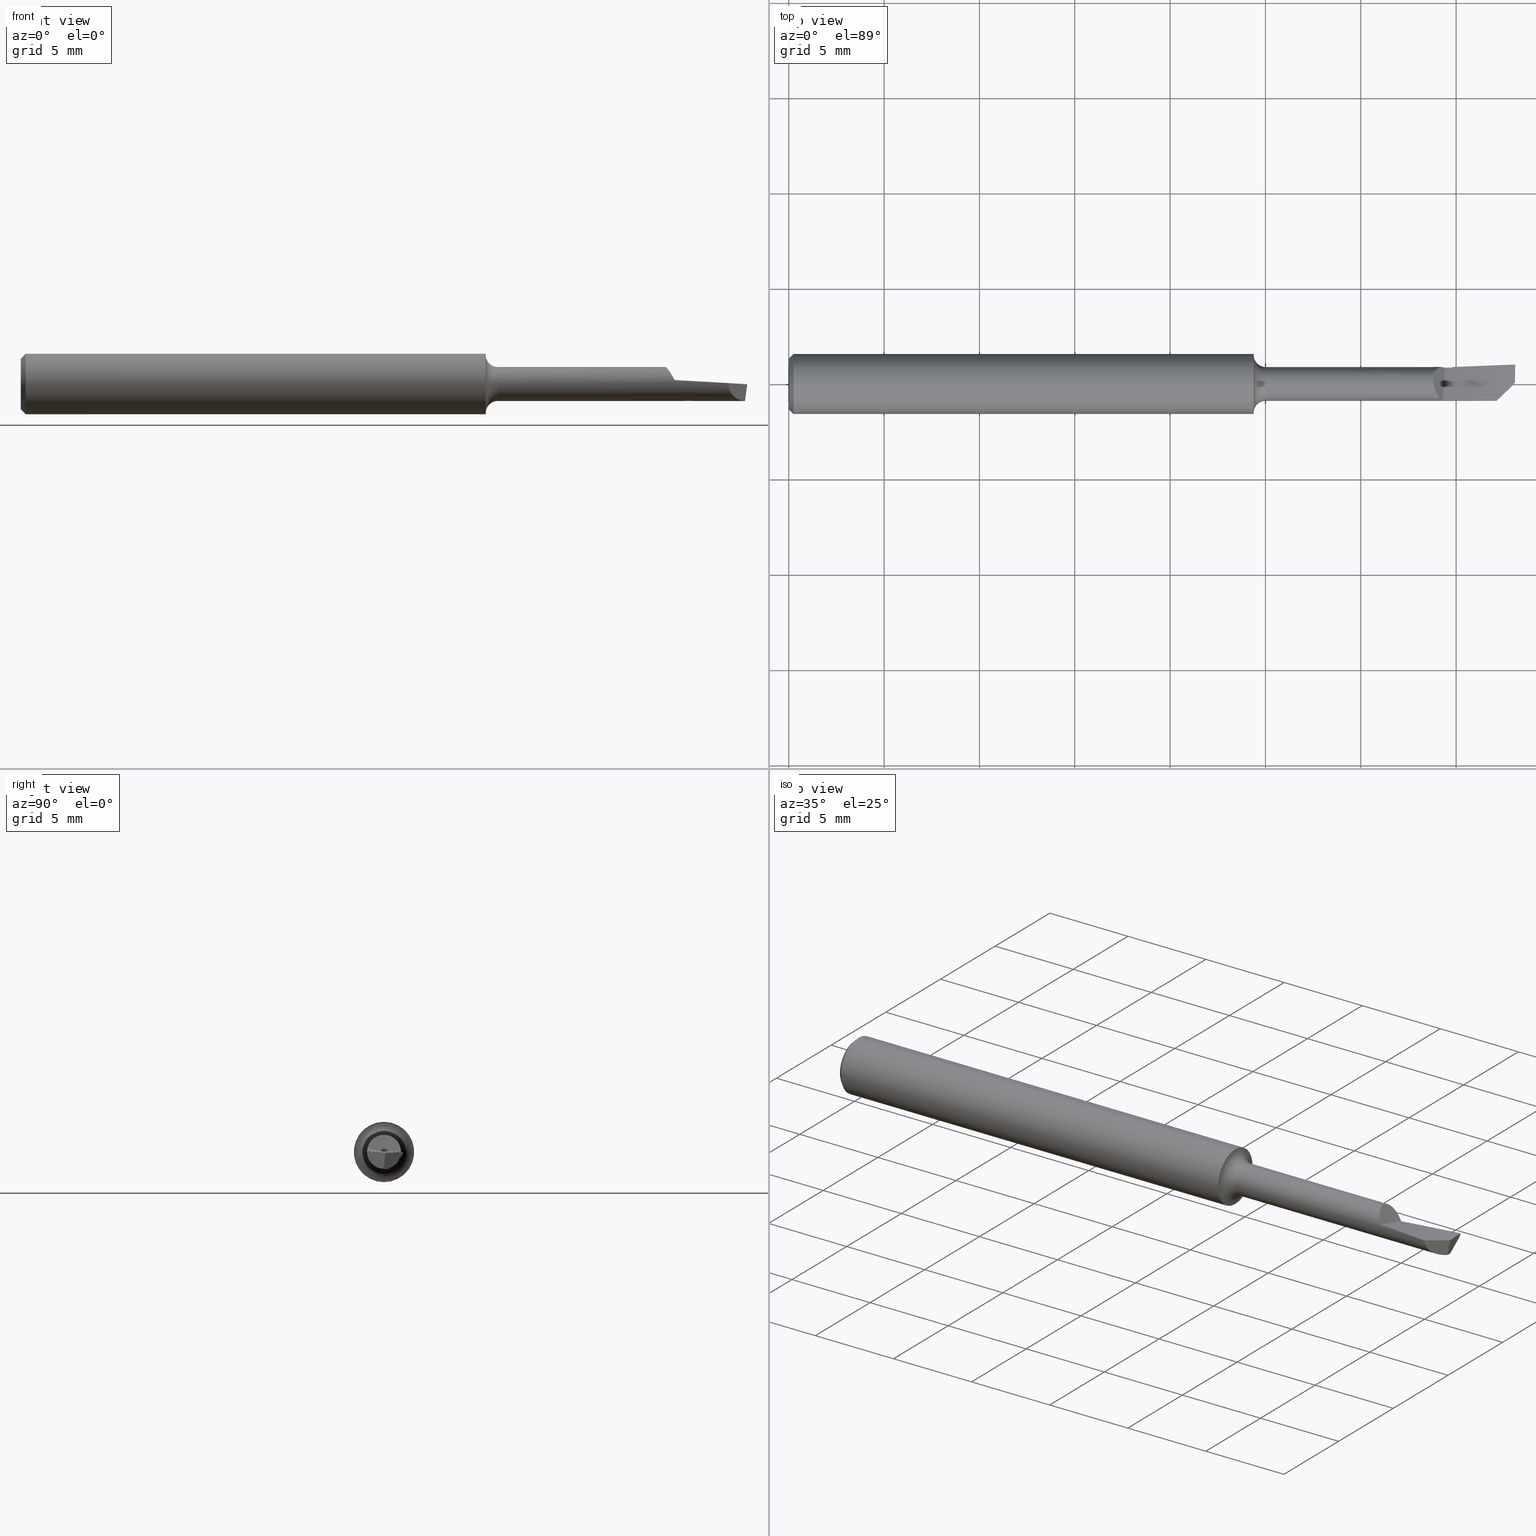
[diagram: canonical four-view strip — front | top / right | iso, engineering-drawing reading convention]
A machine part, canonical four-view strip (front | top / right | iso — engineering-drawing reading convention). The complete STEP part file that produces these views, byte-faithful:
ISO-10303-21;
HEADER;
FILE_DESCRIPTION (( 'STEP AP203' ),
    '1' );
FILE_NAME ('216330-HB080500.STEP',
    '2024-07-25T17:34:44',
    ( '' ),
    ( '' ),
    'SwSTEP 2.0',
    'SolidWorks 2024',
    '' );
FILE_SCHEMA (( 'CONFIG_CONTROL_DESIGN' ));
ENDSEC;

DATA;
#1 = CARTESIAN_POINT ( 'NONE',  ( 1.030555555555556779, 0.08733709819635533667, -0.07154979553626174271 ) ) ;
#2 = ORIENTED_EDGE ( 'NONE', *, *, #596, .F. ) ;
#3 = EDGE_CURVE ( 'NONE', #228, #67, #132, .T. ) ;
#4 = CARTESIAN_POINT ( 'NONE',  ( 1.499593452604395916, 0.01547239693689903516, -0.001549944727832604664 ) ) ;
#5 = ORIENTED_EDGE ( 'NONE', *, *, #413, .F. ) ;
#6 = TOROIDAL_SURFACE ( 'NONE', #580, 0.06000000000000001166, 0.02500000000000007425 ) ;
#7 = DIRECTION ( 'NONE',  ( 0.000000000000000000, 0.000000000000000000, 1.000000000000000000 ) ) ;
#8 = AXIS2_PLACEMENT_3D ( 'NONE', #301, #539, #42 ) ;
#9 = APPROVAL_PERSON_ORGANIZATION ( #566, #302, #89 ) ;
#10 = CARTESIAN_POINT ( 'NONE',  ( 1.413036038293699281, 0.03318867107382488663, -0.01249810771975840180 ) ) ;
#11 = CARTESIAN_POINT ( 'NONE',  ( 1.413333352836346757, 0.03710718456999573950, -0.005993079699847081443 ) ) ;
#12 = FACE_BOUND ( 'NONE', #329, .T. ) ;
#13 = EDGE_CURVE ( 'NONE', #431, #228, #599, .T. ) ;
#14 = CARTESIAN_POINT ( 'NONE',  ( 1.331000000000000183, 0.004616294289774065807, 0.03469423333970930723 ) ) ;
#15 = CARTESIAN_POINT ( 'NONE',  ( 0.000000000000000000, 0.000000000000000000, 0.06234999999999997489 ) ) ;
#16 = CARTESIAN_POINT ( 'NONE',  ( 1.331053929940201108, 0.003862502086807037549, 0.03479453070159699291 ) ) ;
#17 = EDGE_CURVE ( 'NONE', #82, #384, #346, .T. ) ;
#18 = CARTESIAN_POINT ( 'NONE',  ( 0.9850000000000004308, 0.000000000000000000, 0.03499999999999993394 ) ) ;
#19 = CIRCLE ( 'NONE', #627, 0.06000000000000001166 ) ;
#20 = FACE_OUTER_BOUND ( 'NONE', #436, .T. ) ;
#21 =( BOUNDED_CURVE ( )  B_SPLINE_CURVE ( 2, ( #159, #433, #676 ),
 .UNSPECIFIED., .F., .F. ) 
 B_SPLINE_CURVE_WITH_KNOTS ( ( 3, 3 ),
 ( 0.08301568989664878662, 0.3192027755319414850 ),
 .UNSPECIFIED. ) 
 CURVE ( )  GEOMETRIC_REPRESENTATION_ITEM ( )  RATIONAL_B_SPLINE_CURVE ( ( 0.9831666040570180565, 0.9771742139515711134, 0.9796576210879086588 ) ) 
 REPRESENTATION_ITEM ( '' )  );
#22 = CYLINDRICAL_SURFACE ( 'NONE', #134, 0.06234999999999997489 ) ;
#23 = CARTESIAN_POINT ( 'NONE',  ( 1.369999999999999885, 0.03408878458359804881, -0.007934403922984695212 ) ) ;
#24 = DIRECTION ( 'NONE',  ( -1.000000000000000000, -0.000000000000000000, -0.000000000000000000 ) ) ;
#25 = PLANE ( 'NONE',  #423 ) ;
#26 = CARTESIAN_POINT ( 'NONE',  ( 1.370000000000000107, -0.002475945125171957664, -0.03491231438528725334 ) ) ;
#27 = ADVANCED_FACE ( 'NONE', ( #20 ), #98, .T. ) ;
#28 = CARTESIAN_POINT ( 'NONE',  ( 1.382638888888889195, -0.1101294798252469981, 0.03351111324270104191 ) ) ;
#29 = ORIENTED_EDGE ( 'NONE', *, *, #687, .T. ) ;
#30 =( NAMED_UNIT ( * ) PLANE_ANGLE_UNIT ( ) SI_UNIT ( $, .RADIAN. ) );
#31 = B_SPLINE_CURVE_WITH_KNOTS ( 'NONE', 3,
 ( #465, #353, #473, #649 ),
 .UNSPECIFIED., .F., .F.,
 ( 4, 4 ),
 ( 8.875105435169088395E-06, 0.001023648098882407086 ),
 .UNSPECIFIED. ) ;
#32 = CARTESIAN_POINT ( 'NONE',  ( 1.500000000000000000, 0.03809952085550589312, -0.005958615904867708979 ) ) ;
#33 = AXIS2_PLACEMENT_3D ( 'NONE', #645, #538, #417 ) ;
#34 = ORIENTED_EDGE ( 'NONE', *, *, #135, .F. ) ;
#35 = CALENDAR_DATE ( 2024, 25, 7 ) ;
#36 = CARTESIAN_POINT ( 'NONE',  ( 1.500000000000000222, 0.04024999999999999412, 0.000000000000000000 ) ) ;
#37 = CARTESIAN_POINT ( 'NONE',  ( 1.500000000000000222, -0.03792818358084519559, -0.08234999999999997877 ) ) ;
#38 = ORIENTED_EDGE ( 'NONE', *, *, #368, .T. ) ;
#39 = CARTESIAN_POINT ( 'NONE',  ( 1.354108048174081924, 0.03386716557508867576, -0.008832615462564030739 ) ) ;
#40 = ORIENTED_EDGE ( 'NONE', *, *, #683, .T. ) ;
#41 = COORDINATED_UNIVERSAL_TIME_OFFSET ( 8, 0, .BEHIND. ) ;
#42 = DIRECTION ( 'NONE',  ( 0.000000000000000000, 0.000000000000000000, 1.000000000000000000 ) ) ;
#43 = EDGE_LOOP ( 'NONE', ( #565, #443 ) ) ;
#44 = CIRCLE ( 'NONE', #525, 0.06235000000000000264 ) ;
#45 = CARTESIAN_POINT ( 'NONE',  ( 1.349861253357378610, -0.03400066440094470094, 0.008303903918900398112 ) ) ;
#46 = VERTEX_POINT ( 'NONE', #586 ) ;
#47 = CARTESIAN_POINT ( 'NONE',  ( 1.499108024494035574, 0.03738195174965087270, -0.007060442915035111157 ) ) ;
#48 = CARTESIAN_POINT ( 'NONE',  ( 1.354108048174081924, 0.03386716557508867576, -0.008832615462564030739 ) ) ;
#49 = ADVANCED_FACE ( 'NONE', ( #251 ), #247, .T. ) ;
#50 = EDGE_LOOP ( 'NONE', ( #398, #187, #621, #162, #697 ) ) ;
#51 = CARTESIAN_POINT ( 'NONE',  ( 1.499182317159626354, 0.03762190375885633015, -0.006472454600407610663 ) ) ;
#52 = CARTESIAN_POINT ( 'NONE',  ( 1.466661693175757009, 0.03913291383499682696, -0.002304768244400256551 ) ) ;
#53 = ORIENTED_EDGE ( 'NONE', *, *, #466, .F. ) ;
#54 = CIRCLE ( 'NONE', #244, 0.02500000000000007425 ) ;
#55 = DIRECTION ( 'NONE',  ( 0.000000000000000000, 0.000000000000000000, -1.000000000000000000 ) ) ;
#56 = ORIENTED_EDGE ( 'NONE', *, *, #86, .T. ) ;
#57 = FACE_OUTER_BOUND ( 'NONE', #516, .T. ) ;
#58 = VERTEX_POINT ( 'NONE', #529 ) ;
#59 = CC_DESIGN_PERSON_AND_ORGANIZATION_ASSIGNMENT ( #155, #322, ( #209 ) ) ;
#60 = CARTESIAN_POINT ( 'NONE',  ( 0.9850000000000004308, 0.000000000000000000, 0.000000000000000000 ) ) ;
#61 = DIRECTION ( 'NONE',  ( 0.7071067811865461294, 8.659560562354950115E-17, 0.7071067811865489050 ) ) ;
#62 = AXIS2_PLACEMENT_3D ( 'NONE', #385, #112, #55 ) ;
#63 = CARTESIAN_POINT ( 'NONE',  ( 0.9850000000000004308, 0.000000000000000000, 0.06000000000000001166 ) ) ;
#64 = DIRECTION ( 'NONE',  ( -1.000000000000000000, -0.000000000000000000, -0.000000000000000000 ) ) ;
#65 = CARTESIAN_POINT ( 'NONE',  ( 1.331394405026972372, 0.0007809970765131283698, 0.03499344398600933576 ) ) ;
#66 = EDGE_CURVE ( 'NONE', #741, #148, #75, .T. ) ;
#67 = VERTEX_POINT ( 'NONE', #658 ) ;
#68 = LINE ( 'NONE', #488, #476 ) ;
#69 = FACE_OUTER_BOUND ( 'NONE', #606, .T. ) ;
#70 = CARTESIAN_POINT ( 'NONE',  ( 1.331456704639053301, 0.0003309101711865485127, 0.03500000487938483007 ) ) ;
#71 =( BOUNDED_CURVE ( )  B_SPLINE_CURVE ( 3, ( #446, #276, #96, #161 ),
 .UNSPECIFIED., .F., .F. ) 
 B_SPLINE_CURVE_WITH_KNOTS ( ( 4, 4 ),
 ( 0.04083710381015163288, 0.07095262296442973737 ),
 .UNSPECIFIED. ) 
 CURVE ( )  GEOMETRIC_REPRESENTATION_ITEM ( )  RATIONAL_B_SPLINE_CURVE ( ( 1.000000000000000000, 0.9999244227201967705, 0.9999244227201967705, 1.000000000000000000 ) ) 
 REPRESENTATION_ITEM ( '' )  );
#72 = DIRECTION ( 'NONE',  ( -1.000000000000000000, -0.000000000000000000, -0.000000000000000000 ) ) ;
#73 = CARTESIAN_POINT ( 'NONE',  ( 0.000000000000000000, 7.023349393110068342E-18, 0.05234999999999996600 ) ) ;
#74 = AXIS2_PLACEMENT_3D ( 'NONE', #425, #330, #604 ) ;
#75 = LINE ( 'NONE', #526, #714 ) ;
#76 = ORIENTED_EDGE ( 'NONE', *, *, #142, .T. ) ;
#77 = DIRECTION ( 'NONE',  ( 0.000000000000000000, 0.000000000000000000, 1.000000000000000000 ) ) ;
#78 = CARTESIAN_POINT ( 'NONE',  ( 1.350060887786631136, 0.03549031136688796800, -0.002609453551673257717 ) ) ;
#79 = CARTESIAN_POINT ( 'NONE',  ( 1.347349021243149148, -0.03284882170808211405, 0.01302152709131887236 ) ) ;
#80 = CARTESIAN_POINT ( 'NONE',  ( 1.456666580639244257, 0.03886548031854625274, -0.003161233888588574521 ) ) ;
#81 = CARTESIAN_POINT ( 'NONE',  ( 1.265277777777778390, -0.03747963110350861771, 0.009075012135846723116 ) ) ;
#82 = VERTEX_POINT ( 'NONE', #482 ) ;
#83 = CARTESIAN_POINT ( 'NONE',  ( 1.332032781342379346, -0.003603421095435877831, 0.03499994691147841758 ) ) ;
#84 = DIRECTION ( 'NONE',  ( 0.000000000000000000, -3.552713678800500929E-15, -1.000000000000000000 ) ) ;
#85 = CARTESIAN_POINT ( 'NONE',  ( 1.339351427473339351, 0.03167005691899973246, 0.01489993867792207931 ) ) ;
#86 = EDGE_CURVE ( 'NONE', #625, #58, #226, .T. ) ;
#87 = VERTEX_POINT ( 'NONE', #418 ) ;
#88 = B_SPLINE_CURVE_WITH_KNOTS ( 'NONE', 3,
 ( #48, #327, #569, #45 ),
 .UNSPECIFIED., .F., .F.,
 ( 4, 4 ),
 ( 0.000000000000000000, 1.000000000000000000 ),
 .UNSPECIFIED. ) ;
#89 = APPROVAL_ROLE ( '' ) ;
#90 = DIRECTION ( 'NONE',  ( 0.000000000000000000, -0.5807029557109348872, -0.8141155183563225650 ) ) ;
#91 = ORIENTED_EDGE ( 'NONE', *, *, #287, .F. ) ;
#92 = APPROVAL_STATUS ( 'not_yet_approved' ) ;
#93 = LINE ( 'NONE', #564, #653 ) ;
#94 = VERTEX_POINT ( 'NONE', #174 ) ;
#95 = DATE_AND_TIME ( #675, #259 ) ;
#96 = CARTESIAN_POINT ( 'NONE',  ( 1.495348054018489803, -0.0003513610013223372719, -0.03499999999999997558 ) ) ;
#97 = ORIENTED_EDGE ( 'NONE', *, *, #172, .F. ) ;
#98 = CONICAL_SURFACE ( 'NONE', #286, 0.06235000000000000264, 0.7853981633974502774 ) ;
#99 = DIRECTION ( 'NONE',  ( -1.000000000000000000, -0.000000000000000000, -0.000000000000000000 ) ) ;
#100 = COORDINATED_UNIVERSAL_TIME_OFFSET ( 8, 0, .BEHIND. ) ;
#101 = EDGE_CURVE ( 'NONE', #693, #618, #235, .T. ) ;
#102 = DIRECTION ( 'NONE',  ( -0.7071067811865461294, 0.7071067811865489050, 0.000000000000000000 ) ) ;
#103 = ORIENTED_EDGE ( 'NONE', *, *, #745, .T. ) ;
#104 = FACE_OUTER_BOUND ( 'NONE', #733, .T. ) ;
#105 = FACE_OUTER_BOUND ( 'NONE', #43, .T. ) ;
#106 = ORIENTED_EDGE ( 'NONE', *, *, #66, .T. ) ;
#107 = CARTESIAN_POINT ( 'NONE',  ( 1.495341574508108673, -0.001093839349416833020, -0.03499999999999996864 ) ) ;
#108 = CARTESIAN_POINT ( 'NONE',  ( 1.370000000000000107, 0.000000000000000000, 0.000000000000000000 ) ) ;
#109 = ORIENTED_EDGE ( 'NONE', *, *, #670, .F. ) ;
#110 = CIRCLE ( 'NONE', #340, 0.06234999999999997489 ) ;
#111 = APPROVAL_PERSON_ORGANIZATION ( #382, #460, #632 ) ;
#112 = DIRECTION ( 'NONE',  ( 1.000000000000000000, 0.000000000000000000, 0.000000000000000000 ) ) ;
#113 = CC_DESIGN_PERSON_AND_ORGANIZATION_ASSIGNMENT ( #623, #201, ( #684 ) ) ;
#114 = ORIENTED_EDGE ( 'NONE', *, *, #236, .F. ) ;
#115 = LINE ( 'NONE', #15, #554 ) ;
#116 = CARTESIAN_POINT ( 'NONE',  ( 1.499108024494035574, 0.03738195174965087270, -0.007060442915035111157 ) ) ;
#117 = CARTESIAN_POINT ( 'NONE',  ( 1.330999999999999739, -0.02567642842198415709, 0.04381336334392118420 ) ) ;
#118 = CARTESIAN_POINT ( 'NONE',  ( 0.9600000000000004086, 0.1123499999999999083, 0.000000000000000000 ) ) ;
#119 = AXIS2_PLACEMENT_3D ( 'NONE', #147, #366, #620 ) ;
#120 = EDGE_CURVE ( 'NONE', #728, #625, #31, .T. ) ;
#121 = CARTESIAN_POINT ( 'NONE',  ( 1.456666617892146132, 0.04279247675219903513, 0.04683876882906629763 ) ) ;
#122 = LOCAL_TIME ( 10, 34, 44.00000000000000000, #331 ) ;
#123 = CARTESIAN_POINT ( 'NONE',  ( 0.01000000000000000021, 0.000000000000000000, 0.000000000000000000 ) ) ;
#124 = DIRECTION ( 'NONE',  ( 0.000000000000000000, 0.000000000000000000, 1.000000000000000000 ) ) ;
#125 = CARTESIAN_POINT ( 'NONE',  ( 1.500000000000000222, 0.04024999999999999412, 0.04999999999999999584 ) ) ;
#126 = DIRECTION ( 'NONE',  ( 0.000000000000000000, 0.000000000000000000, -1.000000000000000000 ) ) ;
#127 = CARTESIAN_POINT ( 'NONE',  ( 1.331000000000000627, -0.002792424485575396680, 0.03601236922047804795 ) ) ;
#128 = DIRECTION ( 'NONE',  ( 0.1220122463319276152, 0.1220122463319271433, 0.9850005195379716305 ) ) ;
#129 = ORIENTED_EDGE ( 'NONE', *, *, #725, .T. ) ;
#130 = ADVANCED_FACE ( 'NONE', ( #12, #715 ), #710, .T. ) ;
#131 = PLANE ( 'NONE',  #272 ) ;
#132 = CIRCLE ( 'NONE', #463, 0.06235000000000000264 ) ;
#133 = CARTESIAN_POINT ( 'NONE',  ( 1.354108048174081924, 0.03386716557508867576, -0.008832615462564030739 ) ) ;
#135 = EDGE_CURVE ( 'NONE', #469, #427, #54, .T. ) ;
#134 = AXIS2_PLACEMENT_3D ( 'NONE', #428, #483, #124 ) ;
#136 = CARTESIAN_POINT ( 'NONE',  ( 1.349861253357378610, -0.03400066440094470094, 0.008303903918900398112 ) ) ;
#137 = CARTESIAN_POINT ( 'NONE',  ( 0.000000000000000000, 0.000000000000000000, 0.000000000000000000 ) ) ;
#138 = CARTESIAN_POINT ( 'NONE',  ( 1.030555555555556779, -0.07154979553626167332, 0.08733709819635514238 ) ) ;
#139 = ORIENTED_EDGE ( 'NONE', *, *, #578, .T. ) ;
#140 = CARTESIAN_POINT ( 'NONE',  ( 1.370000000000000107, 4.286263797015732127E-18, -0.03499999999999996864 ) ) ;
#141 = LINE ( 'NONE', #107, #233 ) ;
#142 = EDGE_CURVE ( 'NONE', #46, #67, #718, .T. ) ;
#143 = FACE_OUTER_BOUND ( 'NONE', #153, .T. ) ;
#144 = B_SPLINE_CURVE_WITH_KNOTS ( 'NONE', 3,
 ( #36, #80, #480, #611 ),
 .UNSPECIFIED., .F., .F.,
 ( 4, 4 ),
 ( 0.000000000000000000, 1.000000000000000000 ),
 .UNSPECIFIED. ) ;
#145 = ORIENTED_EDGE ( 'NONE', *, *, #194, .T. ) ;
#146 = EDGE_CURVE ( 'NONE', #367, #750, #690, .T. ) ;
#147 = CARTESIAN_POINT ( 'NONE',  ( 0.01000000000000000021, 0.000000000000000000, 0.000000000000000000 ) ) ;
#148 = VERTEX_POINT ( 'NONE', #357 ) ;
#149 = PERSON_AND_ORGANIZATION_ROLE ( 'design_supplier' ) ;
#150 = CARTESIAN_POINT ( 'NONE',  ( 0.000000000000000000, 0.000000000000000000, 0.000000000000000000 ) ) ;
#151 = EDGE_LOOP ( 'NONE', ( #506, #40, #265 ) ) ;
#152 = CARTESIAN_POINT ( 'NONE',  ( 1.370000000000000107, 0.03071494326592775007, -0.01457291182015659631 ) ) ;
#153 = EDGE_LOOP ( 'NONE', ( #700, #97, #614, #644, #535 ) ) ;
#154 = PLANE ( 'NONE',  #362 ) ;
#155 = PERSON_AND_ORGANIZATION ( #706, #748 ) ;
#156 = DIRECTION ( 'NONE',  ( 0.000000000000000000, 0.000000000000000000, -1.000000000000000000 ) ) ;
#157 = ORIENTED_EDGE ( 'NONE', *, *, #17, .F. ) ;
#158 = AXIS2_PLACEMENT_3D ( 'NONE', #315, #250, #257 ) ;
#159 = CARTESIAN_POINT ( 'NONE',  ( 1.461448099694315106, -0.03494965605692109539, 0.001876577070870324082 ) ) ;
#160 = CALENDAR_DATE ( 2024, 25, 7 ) ;
#161 = CARTESIAN_POINT ( 'NONE',  ( 1.495351120299495129, 0.000000000000000000, -0.03499999999999996864 ) ) ;
#162 = ORIENTED_EDGE ( 'NONE', *, *, #612, .T. ) ;
#163 = CARTESIAN_POINT ( 'NONE',  ( 1.499330931467957706, 0.03810109701504994090, -0.005296191744306177028 ) ) ;
#164 = EDGE_CURVE ( 'NONE', #386, #87, #602, .T. ) ;
#165 = PLANE ( 'NONE',  #62 ) ;
#166 = EDGE_LOOP ( 'NONE', ( #277, #496, #447, #462, #474, #669, #273, #630, #401 ) ) ;
#167 = CARTESIAN_POINT ( 'NONE',  ( 1.396666723524801146, 0.03636083483186582782, -0.006624574707342097482 ) ) ;
#168 = ORIENTED_EDGE ( 'NONE', *, *, #396, .F. ) ;
#169 = VECTOR ( 'NONE', #654, 39.37007874015748143 ) ;
#170 = CARTESIAN_POINT ( 'NONE',  ( 1.500000000000000222, 0.04024999999999999412, 6.829619984160658046E-17 ) ) ;
#171 = ORIENTED_EDGE ( 'NONE', *, *, #683, .F. ) ;
#172 = EDGE_CURVE ( 'NONE', #741, #728, #347, .T. ) ;
#173 = DIRECTION ( 'NONE',  ( -1.000000000000000000, -0.000000000000000000, -0.000000000000000000 ) ) ;
#174 = CARTESIAN_POINT ( 'NONE',  ( 0.9850000000000004308, 4.286263797015730586E-18, -0.03499999999999993394 ) ) ;
#175 = CC_DESIGN_DATE_AND_TIME_ASSIGNMENT ( #275, #498, ( #735 ) ) ;
#176 = EDGE_CURVE ( 'NONE', #46, #431, #567, .T. ) ;
#177 = CARTESIAN_POINT ( 'NONE',  ( 0.000000000000000000, 4.286263797015732127E-18, -0.03499999999999996864 ) ) ;
#178 = DIRECTION ( 'NONE',  ( 0.000000000000000000, -1.000000000000000000, 0.000000000000000000 ) ) ;
#179 = CARTESIAN_POINT ( 'NONE',  ( 1.461448099694315106, -0.03494965605692109539, 0.001876577070870324082 ) ) ;
#180 = ORIENTED_EDGE ( 'NONE', *, *, #578, .F. ) ;
#181 = CARTESIAN_POINT ( 'NONE',  ( 1.339803441005056550, -0.02395614404560263144, 0.02567755221092459308 ) ) ;
#182 = CARTESIAN_POINT ( 'NONE',  ( 1.474466291480983404, -0.02193146427025282827, -0.03435520035170590292 ) ) ;
#183 = VERTEX_POINT ( 'NONE', #664 ) ;
#184 = ADVANCED_BREP_SHAPE_REPRESENTATION ( '216330-HB080500', ( #641, #541 ), #615 ) ;
#185 = FACE_OUTER_BOUND ( 'NONE', #166, .T. ) ;
#186 = CARTESIAN_POINT ( 'NONE',  ( 0.01000000000000000021, 0.000000000000000000, 0.000000000000000000 ) ) ;
#187 = ORIENTED_EDGE ( 'NONE', *, *, #352, .F. ) ;
#188 = CARTESIAN_POINT ( 'NONE',  ( 0.000000000000000000, 0.000000000000000000, 0.000000000000000000 ) ) ;
#189 = CARTESIAN_POINT ( 'NONE',  ( 1.486742158958402671, -0.009655596792833632744, -0.001749392622931704487 ) ) ;
#190 = AXIS2_PLACEMENT_3D ( 'NONE', #717, #305, #533 ) ;
#191 = CARTESIAN_POINT ( 'NONE',  ( 1.335078279645394828, 0.02667914871020727122, 0.02277243315126092557 ) ) ;
#192 = ORIENTED_EDGE ( 'NONE', *, *, #542, .F. ) ;
#193 = B_SPLINE_CURVE_WITH_KNOTS ( 'NONE', 3,
 ( #383, #730, #722, #198, #191, #379, #605, #323, #267, #727, #430, #203, #271, #85, #673, #317, #319, #78, #133 ),
 .UNSPECIFIED., .F., .F.,
 ( 4, 2, 2, 2, 1, 1, 1, 2, 2, 2, 4 ),
 ( 0.000000000000000000, 0.2499999999999915623, 0.3749999999999874545, 0.4374999999999852895, 0.4687499999999842348, 0.4843749999999836797, 0.4921874999999834022, 0.4960937499999832356, 0.4999999999999831246, 0.7499999999999915623, 1.000000000000000000 ),
 .UNSPECIFIED. ) ;
#194 = EDGE_CURVE ( 'NONE', #87, #58, #93, .T. ) ;
#195 = B_SPLINE_SURFACE_WITH_KNOTS ( 'NONE', 1, 3, ( 
 ( #682, #206, #613, #426 ),
 ( #37, #677, #435, #505 ) ),
 .UNSPECIFIED., .F., .F., .F.,
 ( 2, 2 ),
 ( 4, 4 ),
 ( 0.000000000000000000, 1.000000000000000000 ),
 ( 0.000000000000000000, 1.000000000000000000 ),
 .UNSPECIFIED. ) ;
#196 = CARTESIAN_POINT ( 'NONE',  ( 1.500000000000000222, 0.04024999999999999412, 0.000000000000000000 ) ) ;
#197 = CARTESIAN_POINT ( 'NONE',  ( 1.370000000000000107, 0.08770814329783385710, 0.03036389747909540998 ) ) ;
#198 = CARTESIAN_POINT ( 'NONE',  ( 1.334244997354534501, 0.02513248369025491633, 0.02446211424800878720 ) ) ;
#199 = ORIENTED_EDGE ( 'NONE', *, *, #3, .F. ) ;
#200 = EDGE_CURVE ( 'NONE', #393, #324, #193, .T. ) ;
#201 = PERSON_AND_ORGANIZATION_ROLE ( 'design_owner' ) ;
#202 = CARTESIAN_POINT ( 'NONE',  ( 1.370000000000000329, 0.03517872208053091782, -0.008094904954636267594 ) ) ;
#203 = CARTESIAN_POINT ( 'NONE',  ( 1.339210398324998996, 0.03155333375350301978, 0.01514571490312990008 ) ) ;
#204 = ORIENTED_EDGE ( 'NONE', *, *, #13, .F. ) ;
#205 = APPROVAL_DATE_TIME ( #450, #460 ) ;
#206 = CARTESIAN_POINT ( 'NONE',  ( 1.456666575375379580, 0.03548751669602867587, -0.009939108785265731230 ) ) ;
#207 = CIRCLE ( 'NONE', #190, 0.03499999999999993394 ) ;
#208 = ORIENTED_EDGE ( 'NONE', *, *, #380, .T. ) ;
#209 = PRODUCT_DEFINITION_FORMATION_WITH_SPECIFIED_SOURCE ( 'ANY', '', #684, .NOT_KNOWN. ) ;
#210 = SECURITY_CLASSIFICATION_LEVEL ( 'unclassified' ) ;
#211 = CARTESIAN_POINT ( 'NONE',  ( 1.427799570774288318, 0.003503458227408547815, -0.03499999999999997558 ) ) ;
#212 = ORIENTED_EDGE ( 'NONE', *, *, #596, .T. ) ;
#213 = ADVANCED_FACE ( 'NONE', ( #143 ), #195, .T. ) ;
#214 = DIRECTION ( 'NONE',  ( 1.000000000000000000, 0.000000000000000000, 0.000000000000000000 ) ) ;
#215 = ORIENTED_EDGE ( 'NONE', *, *, #712, .T. ) ;
#216 = PLANE ( 'NONE',  #74 ) ;
#217 = CARTESIAN_POINT ( 'NONE',  ( 1.370000000000000107, 0.03509910145629642486, -0.008426548722454702683 ) ) ;
#218 = VERTEX_POINT ( 'NONE', #490 ) ;
#219 = AXIS2_PLACEMENT_3D ( 'NONE', #294, #361, #349 ) ;
#220 = APPROVAL_PERSON_ORGANIZATION ( #619, #520, #572 ) ;
#221 = CARTESIAN_POINT ( 'NONE',  ( 1.474065921709957649, -0.02233183404127855182, -0.0005823287045652036096 ) ) ;
#222 = ADVANCED_FACE ( 'NONE', ( #737 ), #392, .T. ) ;
#223 = CARTESIAN_POINT ( 'NONE',  ( 1.500000000000000222, 0.03742181641915391654, -0.007000000000000001013 ) ) ;
#224 =( BOUNDED_SURFACE ( )  B_SPLINE_SURFACE ( 3, 2, ( 
 ( #547, #28, #254, #668, #138 ),
 ( #371, #608, #81, #312, #551 ),
 ( #32, #455, #638, #749, #629 ),
 ( #579, #335, #634, #510, #1 ) ),
 .UNSPECIFIED., .F., .F., .T. ) 
 B_SPLINE_SURFACE_WITH_KNOTS ( ( 4, 4 ),
 ( 3, 2, 3 ),
 ( 0.000000000000000000, 1.000000000000000000 ),
 ( 0.000000000000000000, 0.5000000000000000000, 1.000000000000000000 ),
 .UNSPECIFIED. ) 
 GEOMETRIC_REPRESENTATION_ITEM ( )  RATIONAL_B_SPLINE_SURFACE ( (
 ( 1.000000000000000000, 0.9807852804032304306, 1.000000000000000000, 0.9807852804032304306, 1.000000000000000000),
 ( 0.9829519941216796619, 0.9640648471775461470, 0.9829519941216796619, 0.9640648471775461470, 0.9829519941216796619),
 ( 0.9829519941216796619, 0.9640648471775461470, 0.9829519941216796619, 0.9640648471775461470, 0.9829519941216796619),
 ( 1.000000000000000000, 0.9807852804032304306, 1.000000000000000000, 0.9807852804032304306, 1.000000000000000000) ) ) 
 REPRESENTATION_ITEM ( '' )  SURFACE ( )  );
#225 = VERTEX_POINT ( 'NONE', #375 ) ;
#226 = B_SPLINE_CURVE_WITH_KNOTS ( 'NONE', 3,
 ( #116, #478, #10, #468 ),
 .UNSPECIFIED., .F., .F.,
 ( 4, 4 ),
 ( 0.006861335824644646496, 1.000000000000000000 ),
 .UNSPECIFIED. ) ;
#227 = PLANE ( 'NONE',  #411 ) ;
#228 = VERTEX_POINT ( 'NONE', #439 ) ;
#229 =( BOUNDED_CURVE ( )  B_SPLINE_CURVE ( 3, ( #179, #461, #182, #657 ),
 .UNSPECIFIED., .F., .T. ) 
 B_SPLINE_CURVE_WITH_KNOTS ( ( 4, 4 ),
 ( 6.229543097350791925, 7.823866114820203777 ),
 .UNSPECIFIED. ) 
 CURVE ( )  GEOMETRIC_REPRESENTATION_ITEM ( )  RATIONAL_B_SPLINE_CURVE ( ( 1.000000000000000000, 0.7991600726123448961, 0.7991600726123448961, 1.000000000000000000 ) ) 
 REPRESENTATION_ITEM ( '' )  );
#230 = CARTESIAN_POINT ( 'NONE',  ( 1.456666580639244257, 0.03886548031854625274, -0.003161233888588574521 ) ) ;
#231 = ORIENTED_EDGE ( 'NONE', *, *, #413, .T. ) ;
#232 = CIRCLE ( 'NONE', #679, 0.02500000000000007425 ) ;
#233 = VECTOR ( 'NONE', #698, 39.37007874015748854 ) ;
#234 = CARTESIAN_POINT ( 'NONE',  ( 0.9600000000000004086, 0.000000000000000000, 0.06234999999999997489 ) ) ;
#235 = LINE ( 'NONE', #407, #747 ) ;
#236 = EDGE_CURVE ( 'NONE', #324, #386, #280, .T. ) ;
#237 = CARTESIAN_POINT ( 'NONE',  ( 0.9850000000000004308, 0.000000000000000000, 0.000000000000000000 ) ) ;
#238 = CARTESIAN_POINT ( 'NONE',  ( 1.492107521021284411, -0.004290234729952038459, -0.06111107506225643693 ) ) ;
#239 = FACE_OUTER_BOUND ( 'NONE', #738, .T. ) ;
#240 = CARTESIAN_POINT ( 'NONE',  ( 1.370000000000000107, 0.000000000000000000, 0.000000000000000000 ) ) ;
#241 = CARTESIAN_POINT ( 'NONE',  ( 1.331000000000000183, 0.004616294289774065807, 0.03469423333970930723 ) ) ;
#242 = ORIENTED_EDGE ( 'NONE', *, *, #120, .T. ) ;
#243 = ADVANCED_FACE ( 'NONE', ( #500 ), #224, .T. ) ;
#244 = AXIS2_PLACEMENT_3D ( 'NONE', #63, #178, #126 ) ;
#245 = CARTESIAN_POINT ( 'NONE',  ( 1.337793386717790689, -0.02021934037416783445, 0.02857017395102818755 ) ) ;
#246 = CARTESIAN_POINT ( 'NONE',  ( 1.352845525111599834, 0.01297940551618556593, -0.005511627426491896332 ) ) ;
#247 = CYLINDRICAL_SURFACE ( 'NONE', #219, 0.06234999999999997489 ) ;
#248 = PRODUCT_RELATED_PRODUCT_CATEGORY ( 'detail', '', ( #684 ) ) ;
#249 = CARTESIAN_POINT ( 'NONE',  ( 1.336700319362786438, -0.01793408803862646742, 0.03007517464143421443 ) ) ;
#250 = DIRECTION ( 'NONE',  ( -1.000000000000000000, -0.000000000000000000, -0.000000000000000000 ) ) ;
#251 = FACE_OUTER_BOUND ( 'NONE', #583, .T. ) ;
#252 = CARTESIAN_POINT ( 'NONE',  ( 1.495430207351653440, 0.009062478549520813081, -0.03499999999999996864 ) ) ;
#253 = CARTESIAN_POINT ( 'NONE',  ( 1.378017820884383626, -0.001657874042096282993, -0.03497033113799610793 ) ) ;
#254 = CARTESIAN_POINT ( 'NONE',  ( 1.265277777777778390, -0.09952585216190767969, 0.05330803611170396167 ) ) ;
#255 = ORIENTED_EDGE ( 'NONE', *, *, #470, .T. ) ;
#256 = DIRECTION ( 'NONE',  ( 1.000000000000000000, 0.000000000000000000, 0.000000000000000000 ) ) ;
#257 = DIRECTION ( 'NONE',  ( 0.000000000000000000, 0.000000000000000000, 1.000000000000000000 ) ) ;
#258 = VECTOR ( 'NONE', #394, 39.37007874015748854 ) ;
#259 = LOCAL_TIME ( 10, 34, 44.00000000000000000, #560 ) ;
#260 = CARTESIAN_POINT ( 'NONE',  ( 1.495430207351653440, 0.009062478549520813081, -0.03499999999999996864 ) ) ;
#261 = ORIENTED_EDGE ( 'NONE', *, *, #524, .F. ) ;
#262 = FACE_OUTER_BOUND ( 'NONE', #151, .T. ) ;
#263 = B_SPLINE_CURVE_WITH_KNOTS ( 'NONE', 3,
 ( #688, #696, #52, #344, #288, #513, #701, #167, #402, #582 ),
 .UNSPECIFIED., .F., .F.,
 ( 4, 3, 3, 4 ),
 ( 8.066190078706008124E-21, 0.001273923518814318485, 0.002292415743805619865, 0.003310949389055610308 ),
 .UNSPECIFIED. ) ;
#264 = CARTESIAN_POINT ( 'NONE',  ( 1.369999999999999885, 0.03408878458359804881, -0.007934403922984695212 ) ) ;
#265 = ORIENTED_EDGE ( 'NONE', *, *, #66, .F. ) ;
#266 = B_SPLINE_CURVE_WITH_KNOTS ( 'NONE', 3,
 ( #721, #189, #221, #454 ),
 .UNSPECIFIED., .F., .F.,
 ( 4, 4 ),
 ( 1.873122459272024966E-05, 0.001387652073038749814 ),
 .UNSPECIFIED. ) ;
#267 = CARTESIAN_POINT ( 'NONE',  ( 1.338308066252124062, 0.03074923570111037785, 0.01673615675285359747 ) ) ;
#268 = PRODUCT_DEFINITION_SHAPE ( 'NONE', 'NONE',  #600 ) ;
#269 = EDGE_LOOP ( 'NONE', ( #91, #678, #180, #114, #724, #705, #109 ) ) ;
#270 = ADVANCED_FACE ( 'NONE', ( #518 ), #227, .F. ) ;
#271 = CARTESIAN_POINT ( 'NONE',  ( 1.339287488361074363, 0.03161752867613174672, 0.01501124349615417207 ) ) ;
#272 = AXIS2_PLACEMENT_3D ( 'NONE', #556, #550, #334 ) ;
#273 = ORIENTED_EDGE ( 'NONE', *, *, #200, .T. ) ;
#274 = LOCAL_TIME ( 10, 34, 44.00000000000000000, #314 ) ;
#275 = DATE_AND_TIME ( #736, #122 ) ;
#276 = CARTESIAN_POINT ( 'NONE',  ( 1.495345637702724106, -0.0007026821702816105812, -0.03499470949044750784 ) ) ;
#277 = ORIENTED_EDGE ( 'NONE', *, *, #530, .T. ) ;
#278 = CARTESIAN_POINT ( 'NONE',  ( 1.370000000000000107, 0.03509910145629642486, -0.008426548722454702683 ) ) ;
#279 = CARTESIAN_POINT ( 'NONE',  ( 1.369999999999999885, 0.03408878458359804881, -0.007934403922984695212 ) ) ;
#280 =( BOUNDED_CURVE ( )  B_SPLINE_CURVE ( 2, ( #39, #557, #264 ),
 .UNSPECIFIED., .F., .F. ) 
 B_SPLINE_CURVE_WITH_KNOTS ( ( 3, 3 ),
 ( 0.6897742532983571762, 0.7233326396390371560 ),
 .UNSPECIFIED. ) 
 CURVE ( )  GEOMETRIC_REPRESENTATION_ITEM ( )  RATIONAL_B_SPLINE_CURVE ( ( 0.9794810860655851492, 0.9791740060690131697, 0.9790380341072407733 ) ) 
 REPRESENTATION_ITEM ( '' )  );
#281 = ORIENTED_EDGE ( 'NONE', *, *, #647, .T. ) ;
#282 = CARTESIAN_POINT ( 'NONE',  ( 1.499553889319939826, 0.03881899903363751625, -0.003531437581508542391 ) ) ;
#283 = CARTESIAN_POINT ( 'NONE',  ( 1.354108048174081924, 0.03386716557508867576, -0.008832615462564030739 ) ) ;
#284 = ORIENTED_EDGE ( 'NONE', *, *, #358, .T. ) ;
#285 =( BOUNDED_CURVE ( )  B_SPLINE_CURVE ( 3, ( #23, #449, #494, #202 ),
 .UNSPECIFIED., .F., .T. ) 
 B_SPLINE_CURVE_WITH_KNOTS ( ( 4, 4 ),
 ( 0.001949181480983788956, 0.001977093532277217607 ),
 .UNSPECIFIED. ) 
 CURVE ( )  GEOMETRIC_REPRESENTATION_ITEM ( )  RATIONAL_B_SPLINE_CURVE ( ( 0.9790380341072471015, 0.9790632316668498314, 0.9790888258379936149, 0.9791148166206784520 ) ) 
 REPRESENTATION_ITEM ( '' )  );
#286 = AXIS2_PLACEMENT_3D ( 'NONE', #123, #544, #415 ) ;
#287 = EDGE_CURVE ( 'NONE', #218, #384, #387, .T. ) ;
#288 = CARTESIAN_POINT ( 'NONE',  ( 1.436660461414476231, 0.03800200479332555697, -0.004230669184156183628 ) ) ;
#289 = ORIENTED_EDGE ( 'NONE', *, *, #142, .F. ) ;
#290 = CARTESIAN_POINT ( 'NONE',  ( 1.456666580639244257, 0.03886548031854625274, -0.003161233888588574521 ) ) ;
#291 = EDGE_LOOP ( 'NONE', ( #204, #609, #76, #255 ) ) ;
#292 = ADVANCED_FACE ( 'NONE', ( #105 ), #165, .F. ) ;
#293 = CARTESIAN_POINT ( 'NONE',  ( 1.370000000000000107, 0.03509910145629642486, -0.008426548722454702683 ) ) ;
#294 = CARTESIAN_POINT ( 'NONE',  ( 0.000000000000000000, 0.000000000000000000, 0.000000000000000000 ) ) ;
#295 = AXIS2_PLACEMENT_3D ( 'NONE', #240, #429, #84 ) ;
#296 = CARTESIAN_POINT ( 'NONE',  ( 0.9600000000000002975, 0.000000000000000000, 0.000000000000000000 ) ) ;
#297 = DIRECTION ( 'NONE',  ( 0.000000000000000000, 0.000000000000000000, -1.000000000000000000 ) ) ;
#298 = DIRECTION ( 'NONE',  ( 0.000000000000000000, 0.000000000000000000, 1.000000000000000000 ) ) ;
#299 = CARTESIAN_POINT ( 'NONE',  ( 1.331294995751446386, 0.001557939193859121186, 0.03496746922360455950 ) ) ;
#300 = DIRECTION ( 'NONE',  ( -0.000000000000000000, 1.000000000000000000, 1.224646799147353207E-16 ) ) ;
#301 = CARTESIAN_POINT ( 'NONE',  ( 1.370000000000000329, 0.000000000000000000, 0.000000000000000000 ) ) ;
#302 = APPROVAL ( #503, 'UNSPECIFIED' ) ;
#303 = AXIS2_PLACEMENT_3D ( 'NONE', #60, #523, #7 ) ;
#304 = FACE_OUTER_BOUND ( 'NONE', #320, .T. ) ;
#305 = DIRECTION ( 'NONE',  ( -1.000000000000000000, -0.000000000000000000, -0.000000000000000000 ) ) ;
#306 = ORIENTED_EDGE ( 'NONE', *, *, #584, .T. ) ;
#307 = CARTESIAN_POINT ( 'NONE',  ( 0.9600000000000004086, 7.635672792683743590E-18, -0.06234999999999997489 ) ) ;
#308 = ORIENTED_EDGE ( 'NONE', *, *, #497, .F. ) ;
#309 = CARTESIAN_POINT ( 'NONE',  ( 1.370000000000000329, 0.03500000000000000333, 0.000000000000000000 ) ) ;
#310 = DIRECTION ( 'NONE',  ( 1.000000000000000000, 0.000000000000000000, 0.000000000000000000 ) ) ;
#311 = EDGE_CURVE ( 'NONE', #711, #491, #475, .T. ) ;
#312 = CARTESIAN_POINT ( 'NONE',  ( 1.147916666666667584, -0.03567449895556822070, 0.01653017428716188966 ) ) ;
#313 = ORIENTED_EDGE ( 'NONE', *, *, #380, .F. ) ;
#314 = COORDINATED_UNIVERSAL_TIME_OFFSET ( 8, 0, .BEHIND. ) ;
#315 = CARTESIAN_POINT ( 'NONE',  ( 0.000000000000000000, 0.000000000000000000, 0.000000000000000000 ) ) ;
#316 = VECTOR ( 'NONE', #507, 39.37007874015748143 ) ;
#317 = CARTESIAN_POINT ( 'NONE',  ( 1.341894367848495806, 0.03356220163246477484, 0.01072261346815421047 ) ) ;
#318 = ORIENTED_EDGE ( 'NONE', *, *, #497, .T. ) ;
#319 = CARTESIAN_POINT ( 'NONE',  ( 1.346808722425171467, 0.03512389705892588615, 0.002776269691445878464 ) ) ;
#320 = EDGE_LOOP ( 'NONE', ( #139, #345, #731, #562 ) ) ;
#321 = EDGE_CURVE ( 'NONE', #218, #693, #263, .T. ) ;
#322 = PERSON_AND_ORGANIZATION_ROLE ( 'creator' ) ;
#323 = CARTESIAN_POINT ( 'NONE',  ( 1.337880646310804611, 0.03031292884429805101, 0.01750633447771962267 ) ) ;
#324 = VERTEX_POINT ( 'NONE', #283 ) ;
#325 = CC_DESIGN_PERSON_AND_ORGANIZATION_ASSIGNMENT ( #616, #437, ( #600 ) ) ;
#326 = DATE_TIME_ROLE ( 'creation_date' ) ;
#327 = CARTESIAN_POINT ( 'NONE',  ( 1.352702047875786517, 0.01086592668248290497, -0.004878510784421322133 ) ) ;
#328 = AXIS2_PLACEMENT_3D ( 'NONE', #150, #495, #485 ) ;
#329 = EDGE_LOOP ( 'NONE', ( #231, #215 ) ) ;
#330 = DIRECTION ( 'NONE',  ( 0.000000000000000000, -0.000000000000000000, 1.000000000000000000 ) ) ;
#331 = COORDINATED_UNIVERSAL_TIME_OFFSET ( 8, 0, .BEHIND. ) ;
#332 = CARTESIAN_POINT ( 'NONE',  ( 1.500000000000000222, 0.04024999999999999412, 0.000000000000000000 ) ) ;
#333 = ORIENTED_EDGE ( 'NONE', *, *, #396, .T. ) ;
#334 = DIRECTION ( 'NONE',  ( 0.1218739150664907706, 0.000000000000000000, 0.9925455903012041503 ) ) ;
#335 = CARTESIAN_POINT ( 'NONE',  ( 1.382638888888889195, 0.1145705201747526103, -0.01118449570750796457 ) ) ;
#336 = ADVANCED_FACE ( 'NONE', ( #57 ), #691, .T. ) ;
#337 = ORIENTED_EDGE ( 'NONE', *, *, #524, .T. ) ;
#338 = CARTESIAN_POINT ( 'NONE',  ( 1.499477198303386771, 0.003079442552149252044, -0.001615932808704087465 ) ) ;
#339 = ORIENTED_EDGE ( 'NONE', *, *, #101, .F. ) ;
#340 = AXIS2_PLACEMENT_3D ( 'NONE', #576, #214, #156 ) ;
#341 = APPLICATION_CONTEXT ( 'configuration controlled 3d designs of mechanical parts and assemblies' ) ;
#342 = CC_DESIGN_SECURITY_CLASSIFICATION ( #735, ( #209 ) ) ;
#343 = B_SPLINE_CURVE_WITH_KNOTS ( 'NONE', 3,
 ( #370, #607, #667, #546 ),
 .UNSPECIFIED., .F., .F.,
 ( 4, 4 ),
 ( 0.000000000000000000, 1.000000000000000000 ),
 .UNSPECIFIED. ) ;
#344 = CARTESIAN_POINT ( 'NONE',  ( 1.449989669630438849, 0.03850445489969771262, -0.003375013161977272799 ) ) ;
#345 = ORIENTED_EDGE ( 'NONE', *, *, #101, .T. ) ;
#346 = LINE ( 'NONE', #238, #704 ) ;
#347 = B_SPLINE_CURVE_WITH_KNOTS ( 'NONE', 3,
 ( #617, #211, #561, #260 ),
 .UNSPECIFIED., .F., .F.,
 ( 4, 4 ),
 ( 0.000000000000000000, 0.002585312432601538993 ),
 .UNSPECIFIED. ) ;
#348 = CARTESIAN_POINT ( 'NONE',  ( 1.354408260767925531, 0.03882069367761525197, -0.009656188252159310370 ) ) ;
#349 = DIRECTION ( 'NONE',  ( 0.000000000000000000, 0.000000000000000000, 1.000000000000000000 ) ) ;
#350 = CIRCLE ( 'NONE', #33, 0.06234999999999997489 ) ;
#351 = CARTESIAN_POINT ( 'NONE',  ( 1.370000000000000107, 0.04677136964909170413, 0.04019194729742904537 ) ) ;
#352 = EDGE_CURVE ( 'NONE', #324, #570, #88, .T. ) ;
#353 = CARTESIAN_POINT ( 'NONE',  ( 1.496649045932690214, 0.01856420565680159951, -0.02574904039930988806 ) ) ;
#354 = CC_DESIGN_DATE_AND_TIME_ASSIGNMENT ( #628, #326, ( #600 ) ) ;
#355 = CARTESIAN_POINT ( 'NONE',  ( 1.334785909115937530, -0.01320658456568437993, 0.03247618194674371100 ) ) ;
#356 = CARTESIAN_POINT ( 'NONE',  ( 1.351242489758675225, -0.01264390986590171150, 0.0009138271964874702599 ) ) ;
#357 = CARTESIAN_POINT ( 'NONE',  ( 1.495351120299495129, 0.000000000000000000, -0.03499999999999996864 ) ) ;
#358 = EDGE_CURVE ( 'NONE', #82, #148, #71, .T. ) ;
#359 = CARTESIAN_POINT ( 'NONE',  ( 1.331495543368545587, -1.641673629298505254E-06, 0.03501816221857528139 ) ) ;
#360 = DIRECTION ( 'NONE',  ( -1.000000000000000000, -0.000000000000000000, -0.000000000000000000 ) ) ;
#361 = DIRECTION ( 'NONE',  ( -1.000000000000000000, -0.000000000000000000, -0.000000000000000000 ) ) ;
#362 = AXIS2_PLACEMENT_3D ( 'NONE', #197, #310, #672 ) ;
#363 =( CONVERSION_BASED_UNIT ( 'INCH', #532 ) LENGTH_UNIT ( ) NAMED_UNIT ( #652 ) );
#364 = CARTESIAN_POINT ( 'NONE',  ( 1.370000000000000107, 0.03509910145629642486, -0.008426548722454702683 ) ) ;
#365 = LOCAL_TIME ( 10, 34, 44.00000000000000000, #100 ) ;
#366 = DIRECTION ( 'NONE',  ( 1.000000000000000000, 0.000000000000000000, 0.000000000000000000 ) ) ;
#367 = VERTEX_POINT ( 'NONE', #692 ) ;
#368 = EDGE_CURVE ( 'NONE', #367, #427, #397, .T. ) ;
#369 =( NAMED_UNIT ( * ) SI_UNIT ( $, .STERADIAN. ) SOLID_ANGLE_UNIT ( ) );
#370 = CARTESIAN_POINT ( 'NONE',  ( 1.331000000000000183, 0.01240575712880445484, 0.03272762120993695512 ) ) ;
#371 = CARTESIAN_POINT ( 'NONE',  ( 1.500000000000000000, -0.03809952085550569190, -0.005958615904867730663 ) ) ;
#372 = ORIENTED_EDGE ( 'NONE', *, *, #492, .T. ) ;
#373 = CARTESIAN_POINT ( 'NONE',  ( 1.338270308099900774, -0.02114505770134942481, 0.02789272803984611457 ) ) ;
#374 = CARTESIAN_POINT ( 'NONE',  ( 1.394051705318784640, 1.333910153156378525E-19, -0.03499999999999997558 ) ) ;
#375 = CARTESIAN_POINT ( 'NONE',  ( 0.9600000000000004086, 7.347880794884119921E-18, -0.06000000000000001166 ) ) ;
#376 = ORIENTED_EDGE ( 'NONE', *, *, #622, .F. ) ;
#377 = AXIS2_PLACEMENT_3D ( 'NONE', #118, #590, #297 ) ;
#378 = AXIS2_PLACEMENT_3D ( 'NONE', #545, #72, #471 ) ;
#379 = CARTESIAN_POINT ( 'NONE',  ( 1.336532539227902605, 0.02875460054899264123, 0.01998782427255080263 ) ) ;
#380 = EDGE_CURVE ( 'NONE', #522, #646, #110, .T. ) ;
#381 = ORIENTED_EDGE ( 'NONE', *, *, #448, .T. ) ;
#382 = PERSON_AND_ORGANIZATION ( #706, #748 ) ;
#383 = CARTESIAN_POINT ( 'NONE',  ( 1.331000000000000183, 0.01240575712880445484, 0.03272762120993695512 ) ) ;
#384 = VERTEX_POINT ( 'NONE', #391 ) ;
#385 = CARTESIAN_POINT ( 'NONE',  ( 0.000000000000000000, 0.000000000000000000, 0.000000000000000000 ) ) ;
#386 = VERTEX_POINT ( 'NONE', #279 ) ;
#387 = B_SPLINE_CURVE_WITH_KNOTS ( 'NONE', 3,
 ( #332, #400, #4, #338 ),
 .UNSPECIFIED., .F., .F.,
 ( 4, 4 ),
 ( 2.038322754542619080E-17, 0.0009443978812286317644 ),
 .UNSPECIFIED. ) ;
#388 = FACE_OUTER_BOUND ( 'NONE', #548, .T. ) ;
#389 = ADVANCED_FACE ( 'NONE', ( #414 ), #6, .F. ) ;
#390 = PERSON_AND_ORGANIZATION ( #706, #748 ) ;
#391 = CARTESIAN_POINT ( 'NONE',  ( 1.499477198303386771, 0.003079442552149252044, -0.001615932808704087465 ) ) ;
#392 = CONICAL_SURFACE ( 'NONE', #119, 0.06235000000000000264, 0.7853981633974502774 ) ;
#393 = VERTEX_POINT ( 'NONE', #409 ) ;
#394 = DIRECTION ( 'NONE',  ( 0.000000000000000000, -0.5807029557109348872, -0.8141155183563225650 ) ) ;
#395 = DATE_AND_TIME ( #686, #365 ) ;
#396 = EDGE_CURVE ( 'NONE', #225, #94, #232, .T. ) ;
#397 = LINE ( 'NONE', #451, #316 ) ;
#398 = ORIENTED_EDGE ( 'NONE', *, *, #725, .F. ) ;
#399 = CARTESIAN_POINT ( 'NONE',  ( 1.499108024494035574, 0.03738195174965087270, -0.007060442915035111157 ) ) ;
#400 = CARTESIAN_POINT ( 'NONE',  ( 1.499767103822349013, 0.02786261215107890474, -0.001016319388732455200 ) ) ;
#401 = ORIENTED_EDGE ( 'NONE', *, *, #164, .T. ) ;
#402 = CARTESIAN_POINT ( 'NONE',  ( 1.383333748005017183, 0.03578078092830985768, -0.007376758440280316298 ) ) ;
#403 = ORIENTED_EDGE ( 'NONE', *, *, #481, .T. ) ;
#404 = LINE ( 'NONE', #177, #422 ) ;
#405 = ORIENTED_EDGE ( 'NONE', *, *, #358, .F. ) ;
#406 = DIRECTION ( 'NONE',  ( 0.000000000000000000, 0.000000000000000000, 1.000000000000000000 ) ) ;
#407 = CARTESIAN_POINT ( 'NONE',  ( 1.370000000000000107, 0.04677136964909170413, 0.04019194729742904537 ) ) ;
#408 = ADVANCED_FACE ( 'NONE', ( #467 ), #499, .T. ) ;
#409 = CARTESIAN_POINT ( 'NONE',  ( 1.331000000000000183, 0.01240575712880445484, 0.03272762120993695512 ) ) ;
#410 = CARTESIAN_POINT ( 'NONE',  ( 0.01000000000000000021, 0.000000000000000000, -0.06235000000000000264 ) ) ;
#411 = AXIS2_PLACEMENT_3D ( 'NONE', #642, #102, #457 ) ;
#412 = APPLICATION_PROTOCOL_DEFINITION ( 'international standard', 'config_control_design', 1994, #527 ) ;
#413 = EDGE_CURVE ( 'NONE', #469, #225, #19, .T. ) ;
#414 = FACE_OUTER_BOUND ( 'NONE', #674, .T. ) ;
#415 = DIRECTION ( 'NONE',  ( 0.000000000000000000, 0.000000000000000000, -1.000000000000000000 ) ) ;
#416 = CARTESIAN_POINT ( 'NONE',  ( 1.394051705318784640, 1.333910153156378525E-19, -0.03499999999999997558 ) ) ;
#417 = DIRECTION ( 'NONE',  ( 0.000000000000000000, 0.000000000000000000, -1.000000000000000000 ) ) ;
#418 = CARTESIAN_POINT ( 'NONE',  ( 1.370000000000000107, 0.03319417074594387812, -0.01109716308292908217 ) ) ;
#419 = CARTESIAN_POINT ( 'NONE',  ( 1.337229345020754634, -0.01909039094786255109, 0.02936240406959208030 ) ) ;
#420 = DIRECTION ( 'NONE',  ( -1.000000000000000000, -0.000000000000000000, -0.000000000000000000 ) ) ;
#421 = DIRECTION ( 'NONE',  ( 0.000000000000000000, 0.000000000000000000, 1.000000000000000000 ) ) ;
#422 = VECTOR ( 'NONE', #591, 39.37007874015748143 ) ;
#423 = AXIS2_PLACEMENT_3D ( 'NONE', #309, #671, #603 ) ;
#424 = DIRECTION ( 'NONE',  ( 0.000000000000000000, -0.8526401643540895137, -0.5224985647159531288 ) ) ;
#425 = CARTESIAN_POINT ( 'NONE',  ( 1.370000000000000107, 0.000000000000000000, -0.03499999999999996864 ) ) ;
#426 = CARTESIAN_POINT ( 'NONE',  ( 1.370000000000000107, 0.03071494326592775007, -0.01457291182015659631 ) ) ;
#427 = VERTEX_POINT ( 'NONE', #18 ) ;
#428 = CARTESIAN_POINT ( 'NONE',  ( 0.000000000000000000, 0.000000000000000000, 0.000000000000000000 ) ) ;
#429 = DIRECTION ( 'NONE',  ( -1.000000000000000000, -0.000000000000000000, -0.000000000000000000 ) ) ;
#430 = CARTESIAN_POINT ( 'NONE',  ( 1.339095162364922098, 0.03145644214380193676, 0.01534702063952567315 ) ) ;
#431 = VERTEX_POINT ( 'NONE', #73 ) ;
#432 = APPLICATION_PROTOCOL_DEFINITION ( 'international standard', 'config_control_design', 1994, #341 ) ;
#433 = CARTESIAN_POINT ( 'NONE',  ( 1.405854669175920391, -0.03477472758508969725, 0.005134471468053118659 ) ) ;
#434 = ADVANCED_FACE ( 'NONE', ( #69 ), #563, .T. ) ;
#435 = CARTESIAN_POINT ( 'NONE',  ( 1.413333619448556178, -0.05327943946529381525, -0.07529775844322610101 ) ) ;
#436 = EDGE_LOOP ( 'NONE', ( #192, #501, #453, #289 ) ) ;
#437 = PERSON_AND_ORGANIZATION_ROLE ( 'creator' ) ;
#438 = CIRCLE ( 'NONE', #540, 0.03499999999999993394 ) ;
#439 = CARTESIAN_POINT ( 'NONE',  ( 0.01000000000000000021, 0.000000000000000000, 0.06235000000000000264 ) ) ;
#440 = ORIENTED_EDGE ( 'NONE', *, *, #194, .F. ) ;
#441 = APPROVAL_DATE_TIME ( #95, #520 ) ;
#442 = CARTESIAN_POINT ( 'NONE',  ( 1.456666575375379580, 0.03548751669602867587, -0.009939108785265731230 ) ) ;
#443 = ORIENTED_EDGE ( 'NONE', *, *, #542, .T. ) ;
#444 = EDGE_CURVE ( 'NONE', #646, #522, #350, .T. ) ;
#445 = PERSON_AND_ORGANIZATION ( #706, #748 ) ;
#446 = CARTESIAN_POINT ( 'NONE',  ( 1.495343871900053356, -0.001053883851182963556, -0.03498412967086950848 ) ) ;
#447 = ORIENTED_EDGE ( 'NONE', *, *, #448, .F. ) ;
#448 = EDGE_CURVE ( 'NONE', #427, #94, #438, .T. ) ;
#449 = CARTESIAN_POINT ( 'NONE',  ( 1.370000000000000329, 0.03445204281607999047, -0.007988305219034576299 ) ) ;
#450 = DATE_AND_TIME ( #160, #274 ) ;
#451 = CARTESIAN_POINT ( 'NONE',  ( 0.000000000000000000, 0.000000000000000000, 0.03499999999999996864 ) ) ;
#452 = CLOSED_SHELL ( 'NONE', ( #517, #27, #695, #633, #699, #243, #639, #49, #292, #222, #130, #389, #408, #213, #336, #434, #587, #552, #270, #559 ) ) ;
#453 = ORIENTED_EDGE ( 'NONE', *, *, #3, .T. ) ;
#454 = CARTESIAN_POINT ( 'NONE',  ( 1.461448099694315106, -0.03494965605692109539, 0.001876577070870324082 ) ) ;
#455 = CARTESIAN_POINT ( 'NONE',  ( 1.382638888888889417, 0.03691427845956257031, -0.01353708179426704045 ) ) ;
#456 = ORIENTED_EDGE ( 'NONE', *, *, #444, .T. ) ;
#457 = DIRECTION ( 'NONE',  ( -0.7071067811865489050, -0.7071067811865461294, 0.000000000000000000 ) ) ;
#458 = ORIENTED_EDGE ( 'NONE', *, *, #17, .T. ) ;
#459 = B_SPLINE_CURVE_WITH_KNOTS ( 'NONE', 3,
 ( #26, #253, #484, #374 ),
 .UNSPECIFIED., .F., .F.,
 ( 4, 4 ),
 ( 0.000000000000000000, 0.0006141458020259701282 ),
 .UNSPECIFIED. ) ;
#460 = APPROVAL ( #92, 'UNSPECIFIED' ) ;
#461 = CARTESIAN_POINT ( 'NONE',  ( 1.460328209358946472, -0.03606954639228938941, -0.01898043042972716657 ) ) ;
#462 = ORIENTED_EDGE ( 'NONE', *, *, #368, .F. ) ;
#463 = AXIS2_PLACEMENT_3D ( 'NONE', #186, #24, #421 ) ;
#464 = CARTESIAN_POINT ( 'NONE',  ( 0.01000000000000000021, 0.000000000000000000, 0.000000000000000000 ) ) ;
#465 = CARTESIAN_POINT ( 'NONE',  ( 1.495430207351653440, 0.009062478549520813081, -0.03499999999999996864 ) ) ;
#466 = EDGE_CURVE ( 'NONE', #711, #94, #404, .T. ) ;
#467 = FACE_OUTER_BOUND ( 'NONE', #50, .T. ) ;
#468 = CARTESIAN_POINT ( 'NONE',  ( 1.370000000000000107, 0.03071494326592775007, -0.01457291182015659631 ) ) ;
#469 = VERTEX_POINT ( 'NONE', #713 ) ;
#470 = EDGE_CURVE ( 'NONE', #67, #228, #44, .T. ) ;
#471 = DIRECTION ( 'NONE',  ( 0.000000000000000000, 0.000000000000000000, 1.000000000000000000 ) ) ;
#472 = DIRECTION ( 'NONE',  ( 0.000000000000000000, 0.000000000000000000, 1.000000000000000000 ) ) ;
#473 = CARTESIAN_POINT ( 'NONE',  ( 1.497874998247220812, 0.02800480216285039167, -0.01643580162500215755 ) ) ;
#474 = ORIENTED_EDGE ( 'NONE', *, *, #146, .T. ) ;
#475 = CIRCLE ( 'NONE', #514, 0.03499999999999996864 ) ;
#476 = VECTOR ( 'NONE', #424, 39.37007874015748854 ) ;
#477 = DIRECTION ( 'NONE',  ( -1.000000000000000000, -0.000000000000000000, -0.000000000000000000 ) ) ;
#478 = CARTESIAN_POINT ( 'NONE',  ( 1.456071927924033726, 0.03545619507525727548, -0.009974006937542993431 ) ) ;
#479 = CARTESIAN_POINT ( 'NONE',  ( 1.338054939739406146, -0.02073186248784556623, 0.02819963321498373046 ) ) ;
#480 = CARTESIAN_POINT ( 'NONE',  ( 1.413333352836346757, 0.03710718456999573950, -0.005993079699847081443 ) ) ;
#481 = EDGE_CURVE ( 'NONE', #94, #427, #207, .T. ) ;
#482 = CARTESIAN_POINT ( 'NONE',  ( 1.495343871900053356, -0.001053883851182963556, -0.03498412967086950848 ) ) ;
#483 = DIRECTION ( 'NONE',  ( -1.000000000000000000, -0.000000000000000000, -0.000000000000000000 ) ) ;
#484 = CARTESIAN_POINT ( 'NONE',  ( 1.386035131008513943, -0.0008322225078209507382, -0.03500000000000061395 ) ) ;
#485 = DIRECTION ( 'NONE',  ( 0.000000000000000000, 0.000000000000000000, 1.000000000000000000 ) ) ;
#486 = ORIENTED_EDGE ( 'NONE', *, *, #492, .F. ) ;
#487 = CIRCLE ( 'NONE', #158, 0.05234999999999996600 ) ;
#488 = CARTESIAN_POINT ( 'NONE',  ( 1.370000000000000107, 0.03071494326592775007, -0.01457291182015659631 ) ) ;
#489 = DIRECTION ( 'NONE',  ( 0.000000000000000000, 0.000000000000000000, 1.000000000000000000 ) ) ;
#490 = CARTESIAN_POINT ( 'NONE',  ( 1.500000000000000222, 0.04024999999999999412, 0.000000000000000000 ) ) ;
#491 = VERTEX_POINT ( 'NONE', #707 ) ;
#492 = EDGE_CURVE ( 'NONE', #522, #228, #115, .T. ) ;
#493 = APPROVAL_STATUS ( 'not_yet_approved' ) ;
#494 = CARTESIAN_POINT ( 'NONE',  ( 1.370000000000000329, 0.03481535546364707828, -0.008041805574109175958 ) ) ;
#495 = DIRECTION ( 'NONE',  ( -1.000000000000000000, -0.000000000000000000, -0.000000000000000000 ) ) ;
#496 = ORIENTED_EDGE ( 'NONE', *, *, #466, .T. ) ;
#497 = EDGE_CURVE ( 'NONE', #183, #82, #229, .T. ) ;
#498 = DATE_TIME_ROLE ( 'classification_date' ) ;
#499 = B_SPLINE_SURFACE_WITH_KNOTS ( 'NONE', 1, 3, ( 
 ( #117, #127, #709, #660 ),
 ( #585, #356, #246, #348 ) ),
 .UNSPECIFIED., .F., .F., .F.,
 ( 2, 2 ),
 ( 4, 4 ),
 ( 0.000000000000000000, 1.000000000000000000 ),
 ( 0.002375940040492022926, 0.004221466928566587444 ),
 .UNSPECIFIED. ) ;
#500 = FACE_OUTER_BOUND ( 'NONE', #269, .T. ) ;
#501 = ORIENTED_EDGE ( 'NONE', *, *, #13, .T. ) ;
#502 = B_SPLINE_CURVE_WITH_KNOTS ( 'NONE', 3,
 ( #136, #79, #720, #549, #181, #543, #373, #479, #656, #245, #419, #249, #610, #355, #536, #83, #359 ),
 .UNSPECIFIED., .F., .F.,
 ( 4, 2, 2, 2, 2, 1, 2, 2, 4 ),
 ( 0.000000000000000000, 0.2289401403944834879, 0.4578802807889670867, 0.4864977983382736126, 0.5008065571129226567, 0.5151153158875716453, 0.5723503509861679328, 0.6868204211833556228, 0.9157605615777310026 ),
 .UNSPECIFIED. ) ;
#503 = APPROVAL_STATUS ( 'not_yet_approved' ) ;
#504 = AXIS2_PLACEMENT_3D ( 'NONE', #137, #742, #77 ) ;
#505 = CARTESIAN_POINT ( 'NONE',  ( 1.370000000000000107, -0.06014323840257881915, -0.07025087715557919166 ) ) ;
#506 = ORIENTED_EDGE ( 'NONE', *, *, #172, .T. ) ;
#507 = DIRECTION ( 'NONE',  ( -1.000000000000000000, -0.000000000000000000, -0.000000000000000000 ) ) ;
#508 = ORIENTED_EDGE ( 'NONE', *, *, #481, .F. ) ;
#509 = CARTESIAN_POINT ( 'NONE',  ( 0.000000000000000000, 0.000000000000000000, 0.000000000000000000 ) ) ;
#510 = CARTESIAN_POINT ( 'NONE',  ( 1.147916666666667584, 0.1015692374120036462, -0.05417736657395505473 ) ) ;
#511 = ORIENTED_EDGE ( 'NONE', *, *, #687, .F. ) ;
#512 = CARTESIAN_POINT ( 'NONE',  ( 1.499256619517473688, 0.03786161891478180552, -0.005884370797425257649 ) ) ;
#513 = CARTESIAN_POINT ( 'NONE',  ( 1.423330012478480677, 0.03747144258056701871, -0.005051535428668099507 ) ) ;
#514 = AXIS2_PLACEMENT_3D ( 'NONE', #108, #740, #743 ) ;
#515 = CIRCLE ( 'NONE', #378, 0.06000000000000001166 ) ;
#516 = EDGE_LOOP ( 'NONE', ( #511, #56, #440, #376, #261 ) ) ;
#517 = ADVANCED_FACE ( 'NONE', ( #703 ), #643, .F. ) ;
#518 = FACE_OUTER_BOUND ( 'NONE', #577, .T. ) ;
#519 = EDGE_LOOP ( 'NONE', ( #53, #685, #281, #106, #405, #308, #306, #129, #38, #508 ) ) ;
#520 = APPROVAL ( #493, 'UNSPECIFIED' ) ;
#521 = CARTESIAN_POINT ( 'NONE',  ( 1.413333352836346757, 0.03710718456999573950, -0.005993079699847081443 ) ) ;
#522 = VERTEX_POINT ( 'NONE', #234 ) ;
#523 = DIRECTION ( 'NONE',  ( -1.000000000000000000, -0.000000000000000000, -0.000000000000000000 ) ) ;
#524 = EDGE_CURVE ( 'NONE', #218, #618, #144, .T. ) ;
#525 = AXIS2_PLACEMENT_3D ( 'NONE', #464, #64, #298 ) ;
#526 = CARTESIAN_POINT ( 'NONE',  ( 1.370000000000000107, 0.000000000000000000, -0.03499999999999996864 ) ) ;
#527 = APPLICATION_CONTEXT ( 'configuration controlled 3d designs of mechanical parts and assemblies' ) ;
#528 = CARTESIAN_POINT ( 'NONE',  ( 1.413333315723908523, 0.04496096484040014440, 0.04354215166499517814 ) ) ;
#529 = CARTESIAN_POINT ( 'NONE',  ( 1.370000000000000107, 0.03071494326592775007, -0.01457291182015659631 ) ) ;
#530 = EDGE_CURVE ( 'NONE', #87, #711, #734, .T. ) ;
#531 = DESIGN_CONTEXT ( 'detailed design', #341, 'design' ) ;
#532 = LENGTH_MEASURE_WITH_UNIT ( LENGTH_MEASURE( 0.02539999999999999897 ), #593 );
#533 = DIRECTION ( 'NONE',  ( 0.000000000000000000, 0.000000000000000000, 1.000000000000000000 ) ) ;
#534 = CARTESIAN_POINT ( 'NONE',  ( 1.331157314241224965, 0.002718477382483935976, 0.03490923586866172268 ) ) ;
#535 = ORIENTED_EDGE ( 'NONE', *, *, #86, .F. ) ;
#536 = CARTESIAN_POINT ( 'NONE',  ( 1.332918893907774960, -0.007445133118550570014, 0.03443885990797850016 ) ) ;
#537 = B_SPLINE_CURVE_WITH_KNOTS ( 'NONE', 3,
 ( #399, #51, #512, #163, #636, #282, #746, #575, #662, #196 ),
 .UNSPECIFIED., .F., .F.,
 ( 4, 3, 3, 4 ),
 ( 0.000000000000000000, 4.872193826794965965E-05, 0.0001218049537667296989, 0.0001948880745332750002 ),
 .UNSPECIFIED. ) ;
#538 = DIRECTION ( 'NONE',  ( 1.000000000000000000, 0.000000000000000000, 0.000000000000000000 ) ) ;
#539 = DIRECTION ( 'NONE',  ( -1.000000000000000000, -0.000000000000000000, -0.000000000000000000 ) ) ;
#540 = AXIS2_PLACEMENT_3D ( 'NONE', #237, #477, #472 ) ;
#541 = AXIS2_PLACEMENT_3D ( 'NONE', #188, #666, #256 ) ;
#542 = EDGE_CURVE ( 'NONE', #431, #46, #487, .T. ) ;
#543 = CARTESIAN_POINT ( 'NONE',  ( 1.338419010366644235, -0.02142375399341478470, 0.02767944026997281107 ) ) ;
#544 = DIRECTION ( 'NONE',  ( 1.000000000000000000, 0.000000000000000000, 0.000000000000000000 ) ) ;
#545 = CARTESIAN_POINT ( 'NONE',  ( 0.9600000000000002975, 0.000000000000000000, 0.000000000000000000 ) ) ;
#546 = CARTESIAN_POINT ( 'NONE',  ( 1.331000000000000183, 0.004616294289774065807, 0.03469423333970930723 ) ) ;
#547 = CARTESIAN_POINT ( 'NONE',  ( 1.500000000000000222, -0.1123499999999997279, 0.01116330876759652306 ) ) ;
#548 = EDGE_LOOP ( 'NONE', ( #29, #689, #157, #284, #171, #242 ) ) ;
#549 = CARTESIAN_POINT ( 'NONE',  ( 1.341361941040779104, -0.02639753248977104103, 0.02330451730960648657 ) ) ;
#550 = DIRECTION ( 'NONE',  ( -0.9925083585251990304, 0.008661489226064751634, 0.1218693434051474900 ) ) ;
#551 = CARTESIAN_POINT ( 'NONE',  ( 1.030555555555556557, -0.03115380726970435818, 0.02272705184406837234 ) ) ;
#552 = ADVANCED_FACE ( 'NONE', ( #262 ), #216, .F. ) ;
#553 = ORIENTED_EDGE ( 'NONE', *, *, #444, .F. ) ;
#554 = VECTOR ( 'NONE', #173, 39.37007874015748143 ) ;
#555 = PERSON_AND_ORGANIZATION_ROLE ( 'classification_officer' ) ;
#556 = CARTESIAN_POINT ( 'NONE',  ( 1.500000000000000222, 0.04024999999999999412, 0.000000000000000000 ) ) ;
#557 = CARTESIAN_POINT ( 'NONE',  ( 1.362050427833697563, 0.03398391115976232002, -0.008384974323531014379 ) ) ;
#558 = ORIENTED_EDGE ( 'NONE', *, *, #311, .F. ) ;
#559 = ADVANCED_FACE ( 'NONE', ( #388 ), #131, .F. ) ;
#560 = COORDINATED_UNIVERSAL_TIME_OFFSET ( 8, 0, .BEHIND. ) ;
#561 = CARTESIAN_POINT ( 'NONE',  ( 1.461606834906183039, 0.006391740561852030968, -0.03499999999999996864 ) ) ;
#562 = ORIENTED_EDGE ( 'NONE', *, *, #164, .F. ) ;
#563 = B_SPLINE_SURFACE_WITH_KNOTS ( 'NONE', 1, 3, ( 
 ( #125, #121, #528, #351 ),
 ( #170, #230, #11, #293 ) ),
 .UNSPECIFIED., .F., .F., .F.,
 ( 2, 2 ),
 ( 4, 4 ),
 ( 0.000000000000000000, 1.000000000000000000 ),
 ( 0.000000000000000000, 1.000000000000000000 ),
 .UNSPECIFIED. ) ;
#564 = CARTESIAN_POINT ( 'NONE',  ( 1.370000000000000107, 0.03509910145629642486, -0.008426548722454702683 ) ) ;
#565 = ORIENTED_EDGE ( 'NONE', *, *, #176, .T. ) ;
#566 = PERSON_AND_ORGANIZATION ( #706, #748 ) ;
#567 = CIRCLE ( 'NONE', #328, 0.05234999999999996600 ) ;
#568 = AXIS2_PLACEMENT_3D ( 'NONE', #509, #420, #489 ) ;
#569 = CARTESIAN_POINT ( 'NONE',  ( 1.351296441970193163, -0.01187945877796104180, 0.0008640750039218874018 ) ) ;
#570 = VERTEX_POINT ( 'NONE', #729 ) ;
#571 = LINE ( 'NONE', #364, #258 ) ;
#572 = APPROVAL_ROLE ( '' ) ;
#573 = CARTESIAN_POINT ( 'NONE',  ( 1.413333363049996461, 0.03320576141361428896, -0.01248377343974625339 ) ) ;
#574 = ORIENTED_EDGE ( 'NONE', *, *, #470, .F. ) ;
#575 = CARTESIAN_POINT ( 'NONE',  ( 1.499776912195813772, 0.03953530036268551595, -0.001766040097682996211 ) ) ;
#576 = CARTESIAN_POINT ( 'NONE',  ( 0.9600000000000004086, 0.000000000000000000, 0.000000000000000000 ) ) ;
#577 = EDGE_LOOP ( 'NONE', ( #318, #458, #702 ) ) ;
#578 = EDGE_CURVE ( 'NONE', #386, #693, #285, .T. ) ;
#579 = CARTESIAN_POINT ( 'NONE',  ( 1.500000000000000222, 0.1123499999999998944, 0.01116330876759659071 ) ) ;
#580 = AXIS2_PLACEMENT_3D ( 'NONE', #588, #360, #406 ) ;
#581 = EDGE_LOOP ( 'NONE', ( #208, #456 ) ) ;
#582 = CARTESIAN_POINT ( 'NONE',  ( 1.370000000000000329, 0.03517872208053091782, -0.008094904954636267594 ) ) ;
#583 = EDGE_LOOP ( 'NONE', ( #2, #313, #372, #574 ) ) ;
#584 = EDGE_CURVE ( 'NONE', #183, #570, #21, .T. ) ;
#585 = CARTESIAN_POINT ( 'NONE',  ( 1.349677399370941222, -0.03738263097547639413, 0.009453933976227707481 ) ) ;
#586 = CARTESIAN_POINT ( 'NONE',  ( 0.000000000000000000, 0.000000000000000000, -0.05234999999999996600 ) ) ;
#587 = ADVANCED_FACE ( 'NONE', ( #104 ), #154, .T. ) ;
#588 = CARTESIAN_POINT ( 'NONE',  ( 0.9850000000000004308, 0.000000000000000000, 0.000000000000000000 ) ) ;
#589 = VECTOR ( 'NONE', #99, 39.37007874015748143 ) ;
#590 = DIRECTION ( 'NONE',  ( 1.000000000000000000, 0.000000000000000000, 0.000000000000000000 ) ) ;
#591 = DIRECTION ( 'NONE',  ( -1.000000000000000000, -0.000000000000000000, -0.000000000000000000 ) ) ;
#592 = CARTESIAN_POINT ( 'NONE',  ( 1.331495543368545587, -1.641673629298505254E-06, 0.03501816221857528139 ) ) ;
#593 =( LENGTH_UNIT ( ) NAMED_UNIT ( * ) SI_UNIT ( $, .METRE. ) );
#594 = DIRECTION ( 'NONE',  ( 0.000000000000000000, 0.000000000000000000, 1.000000000000000000 ) ) ;
#595 = EDGE_LOOP ( 'NONE', ( #635, #333, #403, #34 ) ) ;
#596 = EDGE_CURVE ( 'NONE', #646, #67, #694, .T. ) ;
#597 = CARTESIAN_POINT ( 'NONE',  ( 1.370000000000000329, 0.03517872208053091782, -0.008094904954636267594 ) ) ;
#598 = DIRECTION ( 'NONE',  ( -1.000000000000000000, -0.000000000000000000, -0.000000000000000000 ) ) ;
#599 = LINE ( 'NONE', #661, #723 ) ;
#600 = PRODUCT_DEFINITION ( 'UNKNOWN', '', #209, #531 ) ;
#601 = ORIENTED_EDGE ( 'NONE', *, *, #530, .F. ) ;
#602 = CIRCLE ( 'NONE', #8, 0.03500000000000000333 ) ;
#603 = DIRECTION ( 'NONE',  ( -0.000000000000000000, 0.000000000000000000, 1.000000000000000000 ) ) ;
#604 = DIRECTION ( 'NONE',  ( 1.000000000000000000, 0.000000000000000000, -0.000000000000000000 ) ) ;
#605 = CARTESIAN_POINT ( 'NONE',  ( 1.337051348446442134, 0.02940566076342405674, 0.01901811565133405130 ) ) ;
#606 = EDGE_LOOP ( 'NONE', ( #337, #339, #640 ) ) ;
#607 = CARTESIAN_POINT ( 'NONE',  ( 1.330999999999999517, 0.009803475525383244585, 0.03335994485740986781 ) ) ;
#608 = CARTESIAN_POINT ( 'NONE',  ( 1.382638888888889417, -0.03928476325144901471, 0.001619849984531560039 ) ) ;
#609 = ORIENTED_EDGE ( 'NONE', *, *, #176, .F. ) ;
#610 = CARTESIAN_POINT ( 'NONE',  ( 1.335497888578669912, -0.01512468925292026131, 0.03163596606652775700 ) ) ;
#611 = CARTESIAN_POINT ( 'NONE',  ( 1.370000000000000107, 0.03509910145629642486, -0.008426548722454702683 ) ) ;
#612 = EDGE_CURVE ( 'NONE', #393, #750, #343, .T. ) ;
#613 = CARTESIAN_POINT ( 'NONE',  ( 1.413333363049996461, 0.03320576141361428896, -0.01248377343974625339 ) ) ;
#614 = ORIENTED_EDGE ( 'NONE', *, *, #647, .F. ) ;
#615 =( GEOMETRIC_REPRESENTATION_CONTEXT ( 3 ) GLOBAL_UNCERTAINTY_ASSIGNED_CONTEXT ( ( #650 ) ) GLOBAL_UNIT_ASSIGNED_CONTEXT ( ( #363, #30, #369 ) ) REPRESENTATION_CONTEXT ( 'NONE', 'WORKASPACE' ) );
#616 = PERSON_AND_ORGANIZATION ( #706, #748 ) ;
#617 = CARTESIAN_POINT ( 'NONE',  ( 1.394051705318784640, 1.333910153156378525E-19, -0.03499999999999997558 ) ) ;
#618 = VERTEX_POINT ( 'NONE', #278 ) ;
#619 = PERSON_AND_ORGANIZATION ( #706, #748 ) ;
#620 = DIRECTION ( 'NONE',  ( 0.000000000000000000, 0.000000000000000000, -1.000000000000000000 ) ) ;
#621 = ORIENTED_EDGE ( 'NONE', *, *, #200, .F. ) ;
#622 = EDGE_CURVE ( 'NONE', #618, #87, #571, .T. ) ;
#623 = PERSON_AND_ORGANIZATION ( #706, #748 ) ;
#624 = CARTESIAN_POINT ( 'NONE',  ( 1.500000000000000222, 0.04024999999999999412, 6.829619984160658046E-17 ) ) ;
#625 = VERTEX_POINT ( 'NONE', #47 ) ;
#626 = CARTESIAN_POINT ( 'NONE',  ( 0.000000000000000000, 7.635672792683743590E-18, -0.06234999999999997489 ) ) ;
#627 = AXIS2_PLACEMENT_3D ( 'NONE', #296, #598, #594 ) ;
#628 = DATE_AND_TIME ( #35, #665 ) ;
#629 = CARTESIAN_POINT ( 'NONE',  ( 1.030555555555556557, 0.02272705184406853540, -0.03115380726970447267 ) ) ;
#630 = ORIENTED_EDGE ( 'NONE', *, *, #236, .T. ) ;
#631 = CYLINDRICAL_SURFACE ( 'NONE', #568, 0.03499999999999996864 ) ;
#632 = APPROVAL_ROLE ( '' ) ;
#633 = ADVANCED_FACE ( 'NONE', ( #185 ), #631, .T. ) ;
#634 = CARTESIAN_POINT ( 'NONE',  ( 1.265277777777778390, 0.1080698787933781352, -0.03268093114073151312 ) ) ;
#635 = ORIENTED_EDGE ( 'NONE', *, *, #712, .F. ) ;
#636 = CARTESIAN_POINT ( 'NONE',  ( 1.499442399547407545, 0.03846031466084402772, -0.004413921947901956050 ) ) ;
#637 = CC_DESIGN_PERSON_AND_ORGANIZATION_ASSIGNMENT ( #445, #149, ( #209 ) ) ;
#638 = CARTESIAN_POINT ( 'NONE',  ( 1.265277777777778390, 0.03291910393026880460, -0.02008509868905380621 ) ) ;
#639 = ADVANCED_FACE ( 'NONE', ( #726 ), #663, .T. ) ;
#640 = ORIENTED_EDGE ( 'NONE', *, *, #321, .F. ) ;
#641 = MANIFOLD_SOLID_BREP ( 'Front Angle', #452 ) ;
#642 = CARTESIAN_POINT ( 'NONE',  ( 1.447257864376268799, -0.04913989137496750648, -0.04999999999999998890 ) ) ;
#643 = TOROIDAL_SURFACE ( 'NONE', #303, 0.06000000000000001166, 0.02500000000000007425 ) ;
#644 = ORIENTED_EDGE ( 'NONE', *, *, #745, .F. ) ;
#645 = CARTESIAN_POINT ( 'NONE',  ( 0.9600000000000004086, 0.000000000000000000, 0.000000000000000000 ) ) ;
#646 = VERTEX_POINT ( 'NONE', #307 ) ;
#647 = EDGE_CURVE ( 'NONE', #491, #741, #459, .T. ) ;
#648 = CARTESIAN_POINT ( 'NONE',  ( 0.9850000000000004308, 7.347880794884119921E-18, -0.06000000000000001166 ) ) ;
#649 = CARTESIAN_POINT ( 'NONE',  ( 1.499108024494035574, 0.03738195174965087270, -0.007060442915035111157 ) ) ;
#650 = UNCERTAINTY_MEASURE_WITH_UNIT (LENGTH_MEASURE( 1.000000000000000082E-05 ), #363, 'distance_accuracy_value', 'NONE');
#651 = DIRECTION ( 'NONE',  ( 0.000000000000000000, -1.224646799147353207E-16, 1.000000000000000000 ) ) ;
#652 = DIMENSIONAL_EXPONENTS ( 1.000000000000000000, 0.000000000000000000, 0.000000000000000000, 0.000000000000000000, 0.000000000000000000, 0.000000000000000000, 0.000000000000000000 ) ;
#653 = VECTOR ( 'NONE', #90, 39.37007874015748854 ) ;
#654 = DIRECTION ( 'NONE',  ( 0.7071067811865461294, 0.000000000000000000, -0.7071067811865489050 ) ) ;
#655 = CC_DESIGN_APPROVAL ( #520, ( #735 ) ) ;
#656 = CARTESIAN_POINT ( 'NONE',  ( 1.338021804679730309, -0.02066852558397470896, 0.02824692222071363903 ) ) ;
#657 = CARTESIAN_POINT ( 'NONE',  ( 1.495343871900053356, -0.001053883851182963556, -0.03498412967086950848 ) ) ;
#658 = CARTESIAN_POINT ( 'NONE',  ( 0.01000000000000000021, 7.635672792683748212E-18, -0.06235000000000000264 ) ) ;
#659 = CC_DESIGN_PERSON_AND_ORGANIZATION_ASSIGNMENT ( #390, #555, ( #735 ) ) ;
#660 = CARTESIAN_POINT ( 'NONE',  ( 1.331000000000000405, 0.04471756617335117395, 0.02615480468918028600 ) ) ;
#661 = CARTESIAN_POINT ( 'NONE',  ( 0.01000000000000000021, 7.635672792683746671E-18, 0.06235000000000000264 ) ) ;
#662 = CARTESIAN_POINT ( 'NONE',  ( 1.499888445339376153, 0.03989291744638218812, -0.0008831266617482864045 ) ) ;
#663 = CYLINDRICAL_SURFACE ( 'NONE', #504, 0.03499999999999996864 ) ;
#664 = CARTESIAN_POINT ( 'NONE',  ( 1.461448099694315106, -0.03494965605692109539, 0.001876577070870324082 ) ) ;
#665 = LOCAL_TIME ( 10, 34, 44.00000000000000000, #41 ) ;
#666 = DIRECTION ( 'NONE',  ( 0.000000000000000000, 0.000000000000000000, 1.000000000000000000 ) ) ;
#667 = CARTESIAN_POINT ( 'NONE',  ( 1.330999999999999517, 0.007206722562426976127, 0.03401553553964020704 ) ) ;
#668 = CARTESIAN_POINT ( 'NONE',  ( 1.147916666666667584, -0.08892222449856836131, 0.07310495898070687448 ) ) ;
#669 = ORIENTED_EDGE ( 'NONE', *, *, #612, .F. ) ;
#670 = EDGE_CURVE ( 'NONE', #384, #183, #266, .T. ) ;
#671 = DIRECTION ( 'NONE',  ( -1.000000000000000000, 0.000000000000000000, -0.000000000000000000 ) ) ;
#672 = DIRECTION ( 'NONE',  ( 0.000000000000000000, -0.2334453638559059185, -0.9723699203976764460 ) ) ;
#673 = CARTESIAN_POINT ( 'NONE',  ( 1.340232178633280258, 0.03238935991125894281, 0.01336809160094685339 ) ) ;
#674 = EDGE_LOOP ( 'NONE', ( #168, #5, #744, #381 ) ) ;
#675 = CALENDAR_DATE ( 2024, 25, 7 ) ;
#676 = CARTESIAN_POINT ( 'NONE',  ( 1.349861253357378610, -0.03400066440094470094, 0.008303903918900399847 ) ) ;
#677 = CARTESIAN_POINT ( 'NONE',  ( 1.456666448011862069, -0.04578049402130881379, -0.07937111239159963527 ) ) ;
#678 = ORIENTED_EDGE ( 'NONE', *, *, #321, .T. ) ;
#679 = AXIS2_PLACEMENT_3D ( 'NONE', #648, #300, #651 ) ;
#680 = CC_DESIGN_APPROVAL ( #460, ( #600 ) ) ;
#681 = APPROVAL_DATE_TIME ( #395, #302 ) ;
#682 = CARTESIAN_POINT ( 'NONE',  ( 1.500000000000000222, 0.03742181641915391654, -0.007000000000000001013 ) ) ;
#683 = EDGE_CURVE ( 'NONE', #728, #148, #141, .T. ) ;
#684 = PRODUCT ( '216330-HB080500', '216330-HB080500', '', ( #732 ) ) ;
#685 = ORIENTED_EDGE ( 'NONE', *, *, #311, .T. ) ;
#686 = CALENDAR_DATE ( 2024, 25, 7 ) ;
#687 = EDGE_CURVE ( 'NONE', #625, #218, #537, .T. ) ;
#688 = CARTESIAN_POINT ( 'NONE',  ( 1.500000000000000222, 0.04024999999999999412, 0.000000000000000000 ) ) ;
#689 = ORIENTED_EDGE ( 'NONE', *, *, #287, .T. ) ;
#690 = B_SPLINE_CURVE_WITH_KNOTS ( 'NONE', 3,
 ( #592, #70, #65, #299, #534, #16, #241 ),
 .UNSPECIFIED., .F., .F.,
 ( 4, 2, 1, 4 ),
 ( 0.9157605615777310026, 0.9368204211832978912, 0.9578802807888646687, 1.000000000000000000 ),
 .UNSPECIFIED. ) ;
#691 = B_SPLINE_SURFACE_WITH_KNOTS ( 'NONE', 1, 3, ( 
 ( #624, #290, #521, #217 ),
 ( #223, #442, #573, #152 ) ),
 .UNSPECIFIED., .F., .F., .F.,
 ( 2, 2 ),
 ( 4, 4 ),
 ( 0.000000000000000000, 1.000000000000000000 ),
 ( 0.000000000000000000, 1.000000000000000000 ),
 .UNSPECIFIED. ) ;
#692 = CARTESIAN_POINT ( 'NONE',  ( 1.331495543368545587, -1.641673629298505254E-06, 0.03501816221857528139 ) ) ;
#693 = VERTEX_POINT ( 'NONE', #597 ) ;
#694 = LINE ( 'NONE', #626, #589 ) ;
#695 = ADVANCED_FACE ( 'NONE', ( #239 ), #22, .T. ) ;
#696 = CARTESIAN_POINT ( 'NONE',  ( 1.483332049658383056, 0.03971745247345143115, -0.001180075613657003298 ) ) ;
#697 = ORIENTED_EDGE ( 'NONE', *, *, #146, .F. ) ;
#698 = DIRECTION ( 'NONE',  ( -0.008726535498366189136, -0.9999619230641711987, 0.000000000000000000 ) ) ;
#699 = ADVANCED_FACE ( 'NONE', ( #304 ), #25, .T. ) ;
#700 = ORIENTED_EDGE ( 'NONE', *, *, #120, .F. ) ;
#701 = CARTESIAN_POINT ( 'NONE',  ( 1.409998641300993283, 0.03691615008997253117, -0.005838038944314691801 ) ) ;
#702 = ORIENTED_EDGE ( 'NONE', *, *, #670, .T. ) ;
#703 = FACE_OUTER_BOUND ( 'NONE', #595, .T. ) ;
#704 = VECTOR ( 'NONE', #128, 39.37007874015748854 ) ;
#705 = ORIENTED_EDGE ( 'NONE', *, *, #584, .F. ) ;
#706 = PERSON ( 'UNSPECIFIED', 'UNSPECIFIED', 'UNSPECIFIED', ('UNSPECIFIED'), ('UNSPECIFIED'), ('UNSPECIFIED') ) ;
#707 = CARTESIAN_POINT ( 'NONE',  ( 1.370000000000000107, -0.002475945125171957664, -0.03491231438528725334 ) ) ;
#708 = DIRECTION ( 'NONE',  ( 1.000000000000000000, -0.000000000000000000, -0.000000000000000000 ) ) ;
#709 = CARTESIAN_POINT ( 'NONE',  ( 1.330999999999998407, 0.02086033008553510662, 0.03007910182668666055 ) ) ;
#710 = PLANE ( 'NONE',  #377 ) ;
#711 = VERTEX_POINT ( 'NONE', #140 ) ;
#712 = EDGE_CURVE ( 'NONE', #225, #469, #515, .T. ) ;
#713 = CARTESIAN_POINT ( 'NONE',  ( 0.9600000000000004086, 0.000000000000000000, 0.06000000000000001166 ) ) ;
#714 = VECTOR ( 'NONE', #708, 39.37007874015748143 ) ;
#715 = FACE_OUTER_BOUND ( 'NONE', #581, .T. ) ;
#716 = CC_DESIGN_APPROVAL ( #302, ( #209 ) ) ;
#717 = CARTESIAN_POINT ( 'NONE',  ( 0.9850000000000004308, 0.000000000000000000, 0.000000000000000000 ) ) ;
#718 = LINE ( 'NONE', #410, #169 ) ;
#719 = DIRECTION ( 'NONE',  ( 0.000000000000000000, -0.2334453638559059185, -0.9723699203976764460 ) ) ;
#720 = CARTESIAN_POINT ( 'NONE',  ( 1.345134731159825625, -0.03084545218212087977, 0.01698494416425211373 ) ) ;
#721 = CARTESIAN_POINT ( 'NONE',  ( 1.499477198303386771, 0.003079442552149252044, -0.001615932808704087465 ) ) ;
#722 = CARTESIAN_POINT ( 'NONE',  ( 1.332153822774389651, 0.02013732479313393858, 0.02897645992646607702 ) ) ;
#723 = VECTOR ( 'NONE', #61, 39.37007874015748143 ) ;
#724 = ORIENTED_EDGE ( 'NONE', *, *, #352, .T. ) ;
#725 = EDGE_CURVE ( 'NONE', #570, #367, #502, .T. ) ;
#726 = FACE_OUTER_BOUND ( 'NONE', #519, .T. ) ;
#727 = CARTESIAN_POINT ( 'NONE',  ( 1.338829072116323182, 0.03122619352372724144, 0.01581390174671621143 ) ) ;
#728 = VERTEX_POINT ( 'NONE', #252 ) ;
#729 = CARTESIAN_POINT ( 'NONE',  ( 1.349861253357378610, -0.03400066440094470094, 0.008303903918900398112 ) ) ;
#730 = CARTESIAN_POINT ( 'NONE',  ( 1.331304602777540147, 0.01633715496285515628, 0.03123738513575795642 ) ) ;
#731 = ORIENTED_EDGE ( 'NONE', *, *, #622, .T. ) ;
#732 = MECHANICAL_CONTEXT ( 'NONE', #527, 'mechanical' ) ;
#733 = EDGE_LOOP ( 'NONE', ( #145, #103, #558, #601 ) ) ;
#734 = CIRCLE ( 'NONE', #295, 0.03499999999999996864 ) ;
#735 = SECURITY_CLASSIFICATION ( '', '', #210 ) ;
#736 = CALENDAR_DATE ( 2024, 25, 7 ) ;
#737 = FACE_OUTER_BOUND ( 'NONE', #291, .T. ) ;
#738 = EDGE_LOOP ( 'NONE', ( #553, #212, #199, #486 ) ) ;
#739 = SHAPE_DEFINITION_REPRESENTATION ( #268, #184 ) ;
#740 = DIRECTION ( 'NONE',  ( -1.000000000000000000, -0.000000000000000000, -0.000000000000000000 ) ) ;
#741 = VERTEX_POINT ( 'NONE', #416 ) ;
#742 = DIRECTION ( 'NONE',  ( -1.000000000000000000, -0.000000000000000000, -0.000000000000000000 ) ) ;
#743 = DIRECTION ( 'NONE',  ( 0.000000000000000000, 0.000000000000000000, -1.000000000000000000 ) ) ;
#744 = ORIENTED_EDGE ( 'NONE', *, *, #135, .T. ) ;
#745 = EDGE_CURVE ( 'NONE', #58, #491, #68, .T. ) ;
#746 = CARTESIAN_POINT ( 'NONE',  ( 1.499665400677574700, 0.03917714944024874163, -0.002648739475248029079 ) ) ;
#747 = VECTOR ( 'NONE', #719, 39.37007874015748143 ) ;
#748 = ORGANIZATION ( 'UNSPECIFIED', 'UNSPECIFIED', '' ) ;
#749 = CARTESIAN_POINT ( 'NONE',  ( 1.147916666666667584, 0.02892392940097505277, -0.02663311558384059280 ) ) ;
#750 = VERTEX_POINT ( 'NONE', #14 ) ;
ENDSEC;
END-ISO-10303-21;
